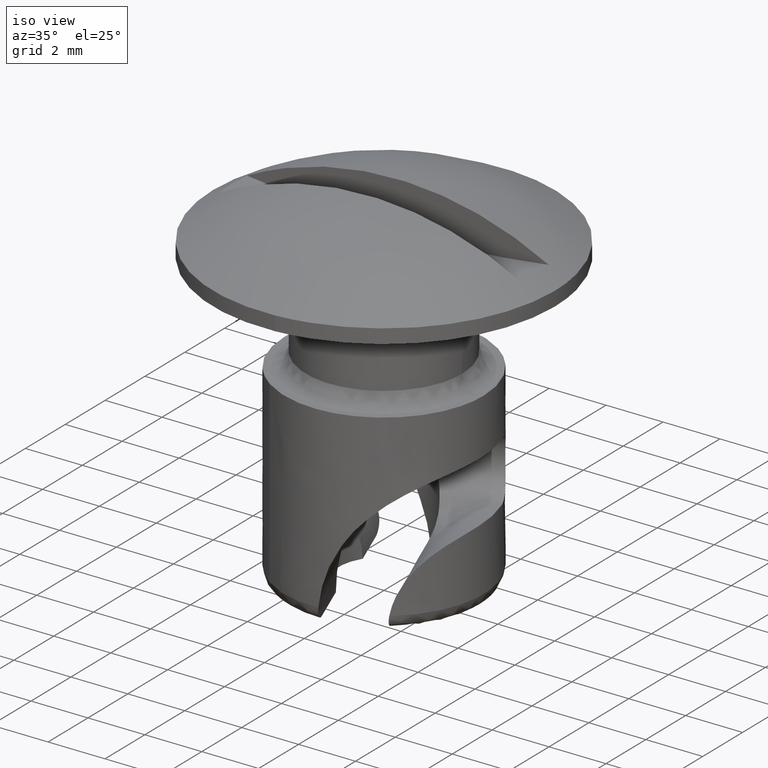
[diagram: clean part render]
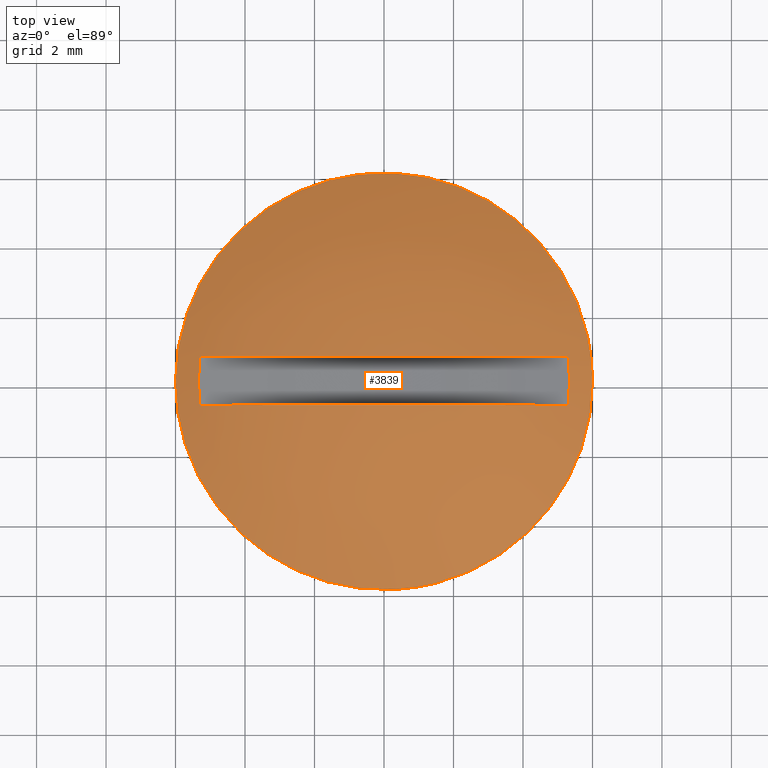
[diagram: tour spotlight — one face highlighted and labeled with its STEP entity id]
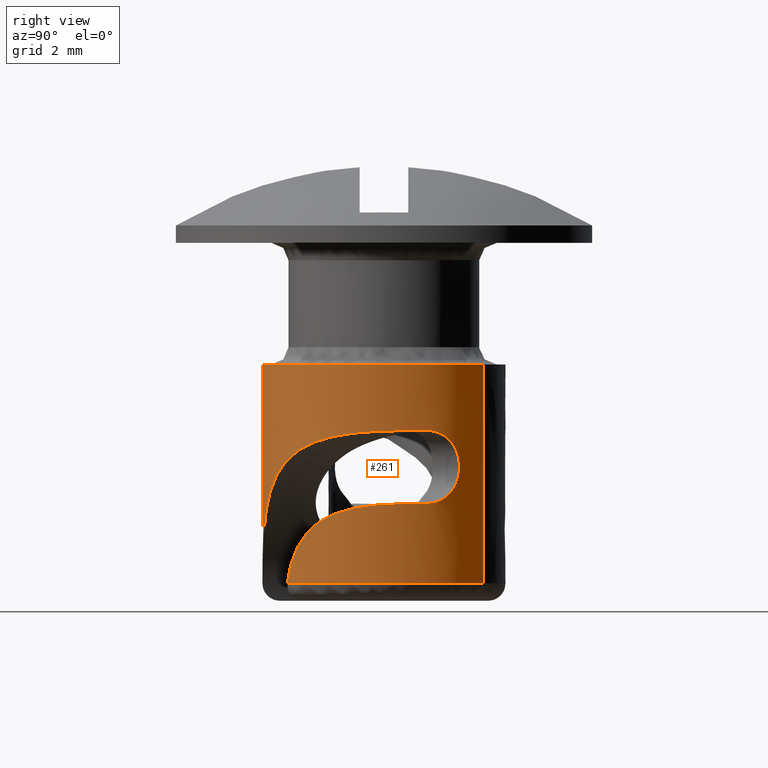
[diagram: tour spotlight — one face highlighted and labeled with its STEP entity id]
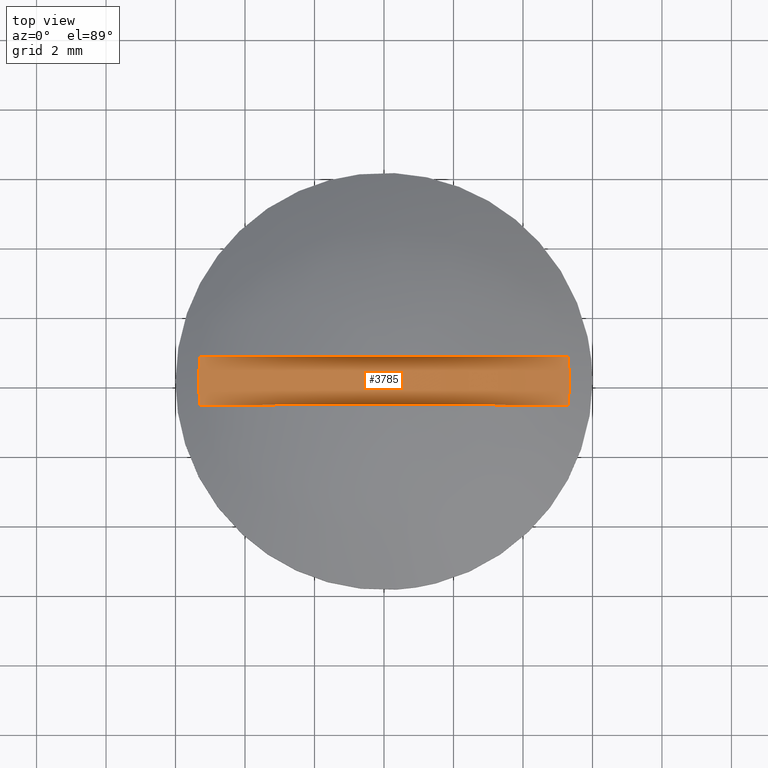
[diagram: tour spotlight — one face highlighted and labeled with its STEP entity id]
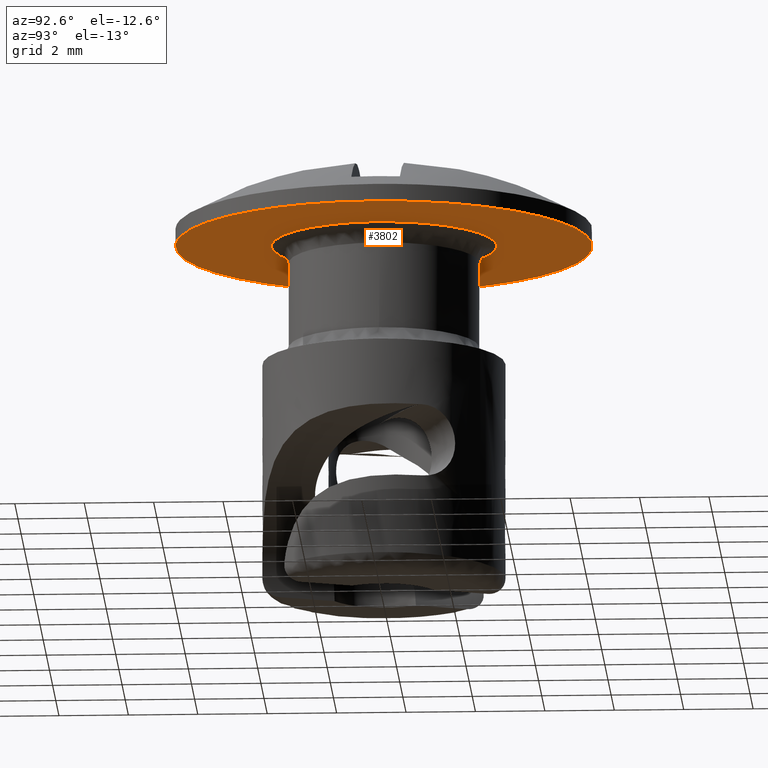
[diagram: tour spotlight — one face highlighted and labeled with its STEP entity id]
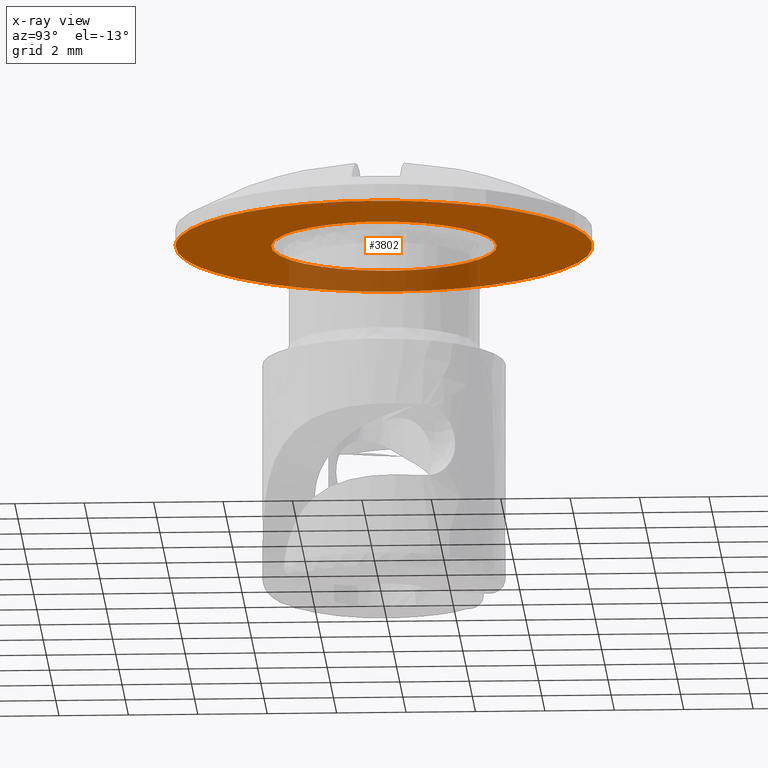
[diagram: x-ray of the same camera — body ghosted, this tour face saturated]
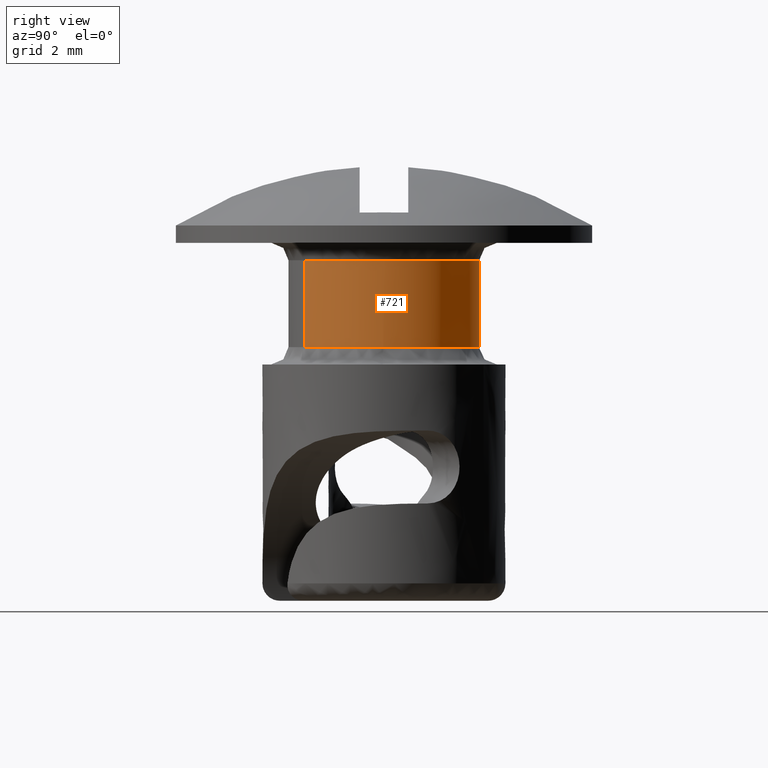
[diagram: tour spotlight — one face highlighted and labeled with its STEP entity id]
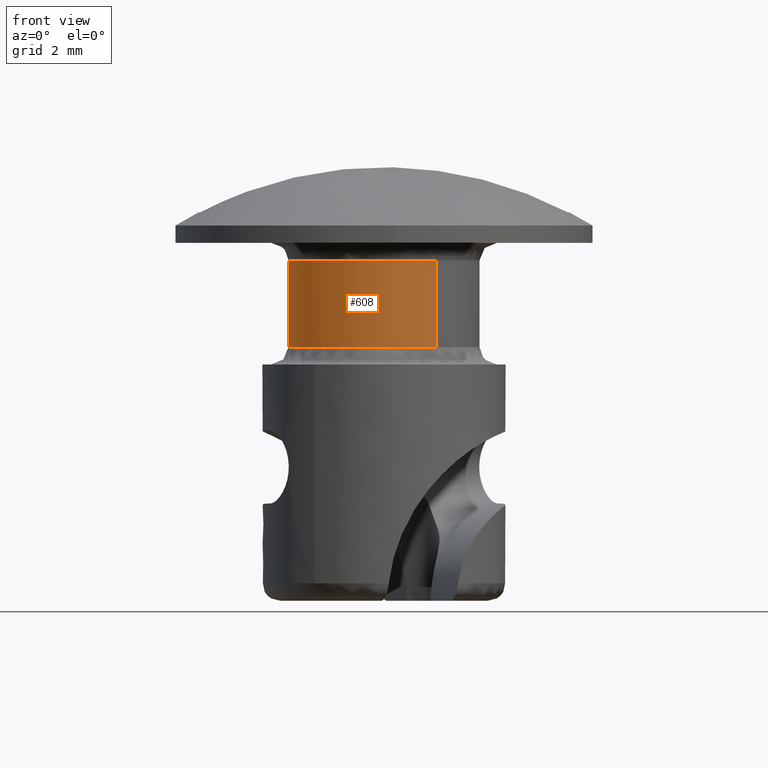
[diagram: tour spotlight — one face highlighted and labeled with its STEP entity id]
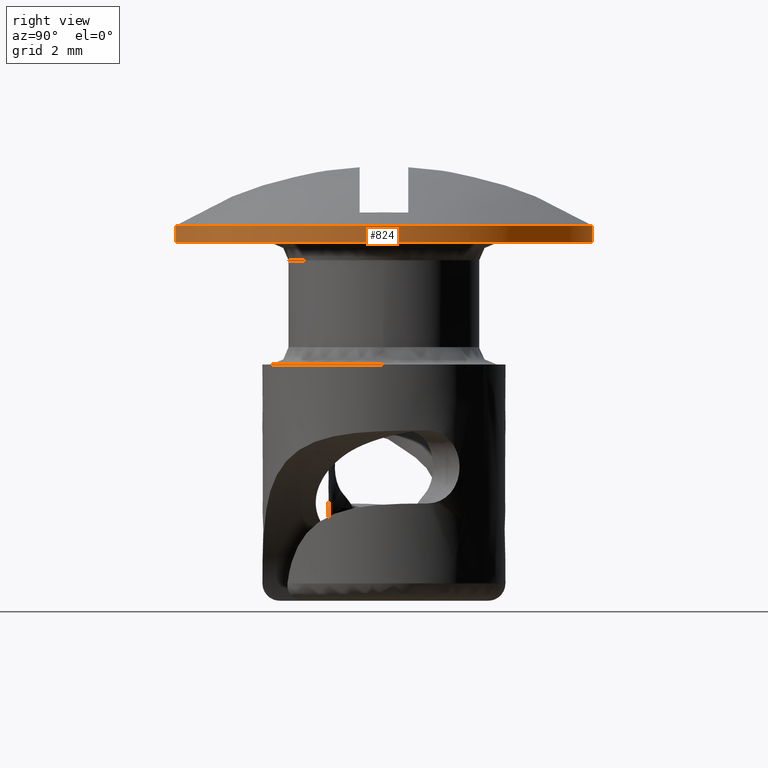
[diagram: tour spotlight — one face highlighted and labeled with its STEP entity id]
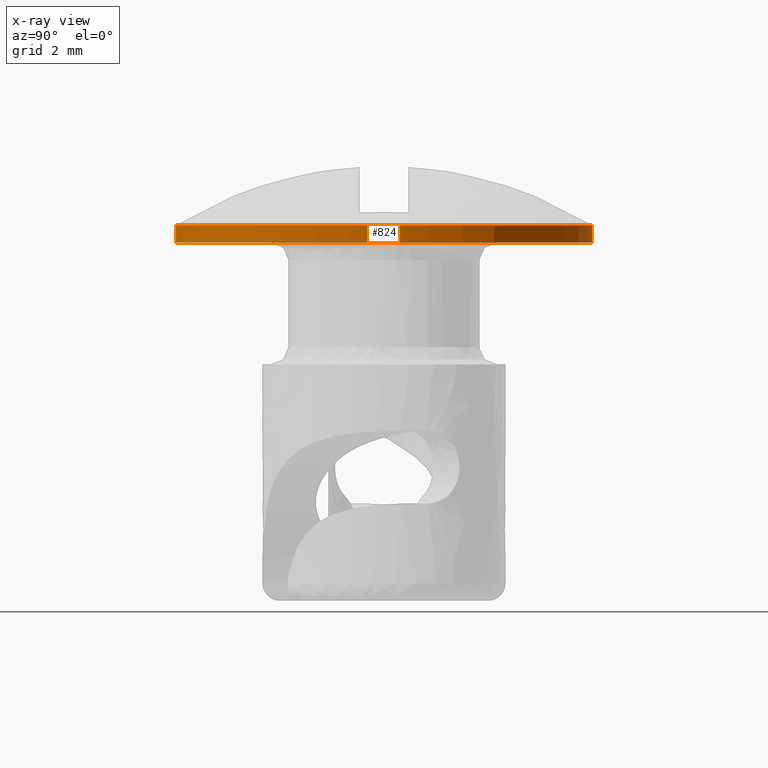
[diagram: x-ray of the same camera — body ghosted, this tour face saturated]
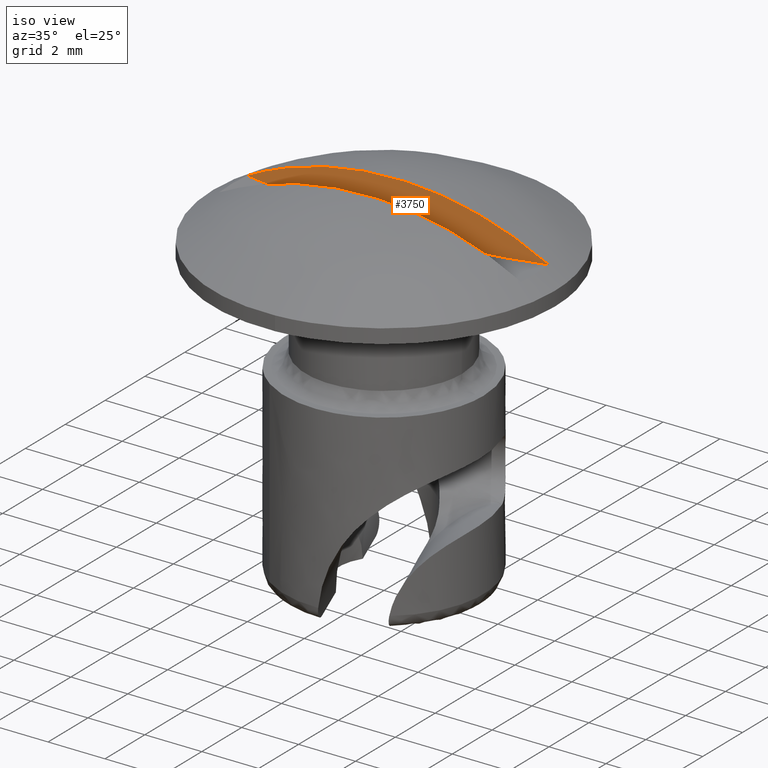
[diagram: tour spotlight — one face highlighted and labeled with its STEP entity id]
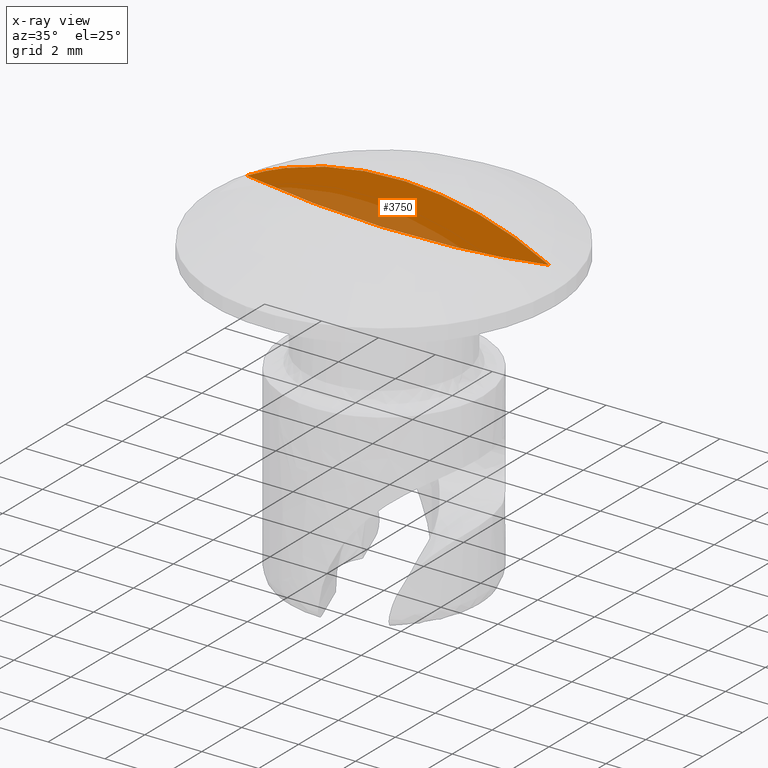
[diagram: x-ray of the same camera — body ghosted, this tour face saturated]
A machine part: a face-by-face anatomy tour. The part has 35 B-rep faces; the first image is the clean iso view, then the 8 largest visible faces are spotlighted one at a time (largest first), each with its STEP entity span.

Face 1 — top view, entity #3839. In plain terms, the highlighted face is a freeform B-spline surface patch.
Definition (entity closure, byte-faithful):
#763=CARTESIAN_POINT('',(-0.708201660671828,5.958057603599299,0.500000000000000));
#764=VERTEX_POINT('',#763);
#770=CARTESIAN_POINT('',(6.0,0.0,0.500000000000000));
#771=VERTEX_POINT('',#770);
#772=CARTESIAN_POINT('',(-0.708201660671828,5.958057603599301,0.500000000000000));
#773=CARTESIAN_POINT('',(-0.355342824469453,6.0,0.500000000000000));
#774=CARTESIAN_POINT('',(0.0,6.0,0.500000000000000));
#775=CARTESIAN_POINT('',(6.0,6.0,0.500000000000000));
#776=CARTESIAN_POINT('',(6.0,0.0,0.500000000000000));
#784=(BOUNDED_CURVE()B_SPLINE_CURVE(2,(#772,#773,#774,#775,#776),.UNSPECIFIED.,.F.,.U.)B_SPLINE_CURVE_WITH_KNOTS((3,2,3),(0.229562579808786,0.250000000000000,0.500000000000000),.UNSPECIFIED.)CURVE()GEOMETRIC_REPRESENTATION_ITEM()RATIONAL_B_SPLINE_CURVE((0.956026962526900,0.976056072863809,1.0,0.707106781186548,1.0))REPRESENTATION_ITEM(''));
#785=EDGE_CURVE('',#764,#771,#784,.T.);
#787=CARTESIAN_POINT('',(0.366289120546966,-5.988808919991055,0.500000000000000));
#788=VERTEX_POINT('',#787);
#789=CARTESIAN_POINT('',(6.0,0.0,0.500000000000000));
#790=CARTESIAN_POINT('',(6.000000000000001,-5.644238400040059,0.500000000000000));
#791=CARTESIAN_POINT('',(0.366289120546966,-5.988808919991055,0.500000000000000));
#799=(BOUNDED_CURVE()B_SPLINE_CURVE(2,(#789,#790,#791),.UNSPECIFIED.,.F.,.U.)B_SPLINE_CURVE_WITH_KNOTS((3,3),(0.500000000000000,0.739333023226263),.UNSPECIFIED.)CURVE()GEOMETRIC_REPRESENTATION_ITEM()RATIONAL_B_SPLINE_CURVE((1.0,0.719603921835620,0.976072172374189))REPRESENTATION_ITEM(''));
#800=EDGE_CURVE('',#771,#788,#799,.T.);
#874=CARTESIAN_POINT('',(-6.0,0.0,0.500000000000000));
#875=VERTEX_POINT('',#874);
#876=CARTESIAN_POINT('',(0.366289120546966,-5.988808919991055,0.500000000000000));
#877=CARTESIAN_POINT('',(0.183315518493018,-6.0,0.500000000000000));
#878=CARTESIAN_POINT('',(0.0,-6.0,0.500000000000000));
#879=CARTESIAN_POINT('',(-6.0,-6.0,0.500000000000000));
#880=CARTESIAN_POINT('',(-6.0,0.0,0.500000000000000));
#888=(BOUNDED_CURVE()B_SPLINE_CURVE(2,(#876,#877,#878,#879,#880),.UNSPECIFIED.,.F.,.U.)B_SPLINE_CURVE_WITH_KNOTS((3,2,3),(0.739333023226263,0.750000000000000,1.0),.UNSPECIFIED.)CURVE()GEOMETRIC_REPRESENTATION_ITEM()RATIONAL_B_SPLINE_CURVE((0.976072172374189,0.987502859350927,1.0,0.707106781186548,1.0))REPRESENTATION_ITEM(''));
#889=EDGE_CURVE('',#788,#875,#888,.T.);
#891=CARTESIAN_POINT('',(-6.0,0.0,0.500000000000000));
#892=CARTESIAN_POINT('',(-6.000000000000001,5.329050530961814,0.500000000000000));
#893=CARTESIAN_POINT('',(-0.708201660671828,5.958057603599301,0.500000000000000));
#901=(BOUNDED_CURVE()B_SPLINE_CURVE(2,(#891,#892,#893),.UNSPECIFIED.,.F.,.U.)B_SPLINE_CURVE_WITH_KNOTS((3,3),(0.0,0.229562579808786),.UNSPECIFIED.)CURVE()GEOMETRIC_REPRESENTATION_ITEM()RATIONAL_B_SPLINE_CURVE((1.0,0.731050708322738,0.956026962526900))REPRESENTATION_ITEM(''));
#902=EDGE_CURVE('',#875,#764,#901,.T.);
#3680=CARTESIAN_POINT('',(-5.303562853731459,-0.699997000000000,0.871922437406934));
#3681=VERTEX_POINT('',#3680);
#3682=CARTESIAN_POINT('',(5.303562853731459,-0.699997000000000,0.871922437406934));
#3683=VERTEX_POINT('',#3682);
#3697=CARTESIAN_POINT('',(5.303562853731459,-0.699997000000000,0.871922437406934));
#3698=CARTESIAN_POINT('',(4.336809E-015,-0.699997000000000,3.654050891943375));
#3699=CARTESIAN_POINT('',(-5.303562853731469,-0.699997000000000,0.871922437406952));
#3707=(BOUNDED_CURVE()B_SPLINE_CURVE(2,(#3697,#3698,#3699),.UNSPECIFIED.,.F.,.U.)CURVE()GEOMETRIC_REPRESENTATION_ITEM()QUASI_UNIFORM_CURVE()RATIONAL_B_SPLINE_CURVE((1.0,0.885551927244557,1.0))REPRESENTATION_ITEM(''));
#3708=EDGE_CURVE('',#3683,#3681,#3707,.T.);
#3718=CARTESIAN_POINT('',(5.303562853731459,0.699996999999907,0.871922437406934));
#3719=VERTEX_POINT('',#3718);
#3720=CARTESIAN_POINT('',(-5.303562853731459,0.699996999999907,0.871922437406934));
#3721=VERTEX_POINT('',#3720);
#3722=CARTESIAN_POINT('',(5.303562853731459,0.699996999999907,0.871922437406934));
#3723=CARTESIAN_POINT('',(4.336809E-015,0.699996999999910,3.654050891943375));
#3724=CARTESIAN_POINT('',(-5.303562853731469,0.699996999999910,0.871922437406952));
#3732=(BOUNDED_CURVE()B_SPLINE_CURVE(2,(#3722,#3723,#3724),.UNSPECIFIED.,.F.,.U.)CURVE()GEOMETRIC_REPRESENTATION_ITEM()QUASI_UNIFORM_CURVE()RATIONAL_B_SPLINE_CURVE((1.0,0.885551927244557,1.0))REPRESENTATION_ITEM(''));
#3733=EDGE_CURVE('',#3719,#3721,#3732,.T.);
#3766=CARTESIAN_POINT('',(-5.303562853731472,-0.699997000000000,0.871922437406934));
#3767=CARTESIAN_POINT('',(-5.327837280465762,-0.466664666666683,0.875343843874204));
#3768=CARTESIAN_POINT('',(-5.351858492111501,-4.743385E-014,0.878765250341469));
#3769=CARTESIAN_POINT('',(-5.327837280465761,0.466664666666589,0.875343843874209));
#3770=CARTESIAN_POINT('',(-5.303562853731474,0.699996999999907,0.871922437406939));
#3771=B_SPLINE_CURVE_WITH_KNOTS('',3,(#3766,#3767,#3768,#3769,#3770),.UNSPECIFIED.,.F.,.U.,(4,1,4),(0.0,0.500000000000000,1.0),.UNSPECIFIED.);
#3772=EDGE_CURVE('',#3681,#3721,#3771,.T.);
#3775=CARTESIAN_POINT('',(5.303562853731459,0.699996999999907,0.871922437406934));
#3776=CARTESIAN_POINT('',(5.327837280465756,0.466664666666589,0.875343843874210));
#3777=CARTESIAN_POINT('',(5.351858492111494,-4.667490E-014,0.878765250341474));
#3778=CARTESIAN_POINT('',(5.327837280465755,-0.466664666666682,0.875343843874207));
#3779=CARTESIAN_POINT('',(5.303562853731465,-0.699997000000000,0.871922437406936));
#3780=B_SPLINE_CURVE_WITH_KNOTS('',3,(#3775,#3776,#3777,#3778,#3779),.UNSPECIFIED.,.F.,.U.,(4,1,4),(0.0,0.500000000000000,1.0),.UNSPECIFIED.);
#3781=EDGE_CURVE('',#3719,#3683,#3780,.T.);
#3803=CARTESIAN_POINT('',(-5.969675992943822,-5.969543951738393,-1.520682928140488));
#3804=CARTESIAN_POINT('',(-3.249060713657500,-6.497977697607177,0.175019227125434));
#3805=CARTESIAN_POINT('',(3.249060519192921,-6.497977697607177,0.175019227125434));
#3806=CARTESIAN_POINT('',(5.969675693756793,-5.969544009850434,-1.520682741663528));
#3807=CARTESIAN_POINT('',(-6.498095981320763,-3.248976126087886,0.174937574745698));
#3808=CARTESIAN_POINT('',(-3.564590069219284,-3.564511225280327,2.199992000000094));
#3809=CARTESIAN_POINT('',(3.564589855869467,-3.564511225280327,2.199992000000094));
#3810=CARTESIAN_POINT('',(6.498095661249864,-3.248976160515495,0.174937795696663));
#3811=CARTESIAN_POINT('',(-6.498095981320763,3.248994055083641,0.174937574745698));
#3812=CARTESIAN_POINT('',(-3.564590069219284,3.564530895510007,2.199992000000094));
#3813=CARTESIAN_POINT('',(3.564589855869467,3.564530895510007,2.199992000000094));
#3814=CARTESIAN_POINT('',(6.498095661249864,3.248994089511440,0.174937795696663));
#3815=CARTESIAN_POINT('',(-5.969670635173111,5.969571536104839,-1.520700120423281));
#3816=CARTESIAN_POINT('',(-3.249057539501856,6.498007207533205,0.174998856346475));
#3817=CARTESIAN_POINT('',(3.249057345037466,6.498007207533205,0.174998856346475));
#3818=CARTESIAN_POINT('',(5.969670335986301,5.969571594217098,-1.520699933946656));
#3826=(BOUNDED_SURFACE()B_SPLINE_SURFACE(2,2,((#3803,#3807,#3811,#3815),(#3804,#3808,#3812,#3816),(#3805,#3809,#3813,#3817),(#3806,#3810,#3814,#3818)),.UNSPECIFIED.,.F.,.F.,.U.)B_SPLINE_SURFACE_WITH_KNOTS((3,1,3),(3,1,3),(1.175170707547665,7.855777368122123,14.536383628845220),(1.175318473583460,7.855777368122122,14.536273127788309),.UNSPECIFIED.)GEOMETRIC_REPRESENTATION_ITEM()RATIONAL_B_SPLINE_SURFACE(((1.194232341397638,1.097118318801677,1.097118318801677,1.194233413219427),(1.097114022595961,1.0,1.0,1.097115094417751),(1.097114022595961,1.0,1.0,1.097115094417751),(1.194232329772080,1.097118307176119,1.097118307176119,1.194233401593869)))REPRESENTATION_ITEM('')SURFACE());
#3827=ORIENTED_EDGE('',*,*,#889,.F.);
#3828=ORIENTED_EDGE('',*,*,#800,.F.);
#3829=ORIENTED_EDGE('',*,*,#785,.F.);
#3830=ORIENTED_EDGE('',*,*,#902,.F.);
#3831=EDGE_LOOP('',(#3827,#3828,#3829,#3830));
#3832=FACE_OUTER_BOUND('',#3831,.T.);
#3833=ORIENTED_EDGE('',*,*,#3733,.F.);
#3834=ORIENTED_EDGE('',*,*,#3781,.T.);
#3835=ORIENTED_EDGE('',*,*,#3708,.T.);
#3836=ORIENTED_EDGE('',*,*,#3772,.T.);
#3837=EDGE_LOOP('',(#3833,#3834,#3835,#3836));
#3838=FACE_BOUND('',#3837,.T.);
#3839=ADVANCED_FACE('',(#3832,#3838),#3826,.T.);

Face 2 — right view, entity #261. In plain terms, the highlighted face is a freeform B-spline surface patch.
Definition (entity closure, byte-faithful):
#44=CARTESIAN_POINT('',(-2.008126164409476,-2.866605886377490,-9.957500000000000));
#45=CARTESIAN_POINT('',(0.858479721968014,-4.874732050786967,-9.957500000000000));
#46=CARTESIAN_POINT('',(2.866605886377490,-2.008126164409476,-9.957500000000000));
#47=CARTESIAN_POINT('',(4.874732050786967,0.858479721968014,-9.957500000000000));
#48=CARTESIAN_POINT('',(2.008126164409476,2.866605886377490,-9.957500000000000));
#49=CARTESIAN_POINT('',(-2.008126164409476,-2.866605886377490,-3.338562500000061));
#50=CARTESIAN_POINT('',(0.858479721968014,-4.874732050786967,-3.338562500000061));
#51=CARTESIAN_POINT('',(2.866605886377490,-2.008126164409476,-3.338562500000061));
#52=CARTESIAN_POINT('',(4.874732050786967,0.858479721968014,-3.338562500000061));
#53=CARTESIAN_POINT('',(2.008126164409476,2.866605886377490,-3.338562500000061));
#61=(BOUNDED_SURFACE()B_SPLINE_SURFACE(2,1,((#44,#49),(#45,#50),(#46,#51),(#47,#52),(#48,#53)),.UNSPECIFIED.,.F.,.F.,.U.)B_SPLINE_SURFACE_WITH_KNOTS((3,2,3),(2,2),(0.0,5.798989873223329,11.597979746446660),(0.0,6.618937499999940),.UNSPECIFIED.)GEOMETRIC_REPRESENTATION_ITEM()RATIONAL_B_SPLINE_SURFACE(((1.0,1.0),(0.707106781186548,0.707106781186548),(1.0,1.0),(0.707106781186548,0.707106781186548),(1.0,1.0)))REPRESENTATION_ITEM('')SURFACE());
#62=CARTESIAN_POINT('',(-2.008126173455086,-2.866605880040825,-3.500000000000060));
#63=VERTEX_POINT('',#62);
#64=CARTESIAN_POINT('',(3.500000000000000,0.0,-3.500000000000060));
#65=VERTEX_POINT('',#64);
#66=CARTESIAN_POINT('',(-2.008126173455085,-2.866605880040824,-3.500000000000060));
#67=CARTESIAN_POINT('',(-1.103954254146913,-3.500000000000000,-3.500000000000060));
#68=CARTESIAN_POINT('',(0.0,-3.500000000000000,-3.500000000000060));
#69=CARTESIAN_POINT('',(3.500000000000000,-3.500000000000000,-3.500000000000060));
#70=CARTESIAN_POINT('',(3.500000000000000,0.0,-3.500000000000060));
#78=(BOUNDED_CURVE()B_SPLINE_CURVE(2,(#66,#67,#68,#69,#70),.UNSPECIFIED.,.F.,.U.)B_SPLINE_CURVE_WITH_KNOTS((3,2,3),(0.651369759695088,0.750000000000000,1.0),.UNSPECIFIED.)CURVE()GEOMETRIC_REPRESENTATION_ITEM()RATIONAL_B_SPLINE_CURVE((0.860070749521632,0.884447485779000,1.0,0.707106781186547,1.0))REPRESENTATION_ITEM(''));
#79=EDGE_CURVE('',#63,#65,#78,.T.);
#80=ORIENTED_EDGE('',*,*,#79,.F.);
#81=CARTESIAN_POINT('',(-2.008126187107563,-2.866605870476937,-9.799999999999999));
#82=VERTEX_POINT('',#81);
#83=CARTESIAN_POINT('',(-2.008126187107563,-2.866605870476937,-9.799999999999999));
#84=CARTESIAN_POINT('',(-2.008126173455086,-2.866605880040825,-3.500000000000060));
#85=QUASI_UNIFORM_CURVE('',1,(#83,#84),.UNSPECIFIED.,.F.,.U.);
#86=EDGE_CURVE('',#82,#63,#85,.T.);
#87=ORIENTED_EDGE('',*,*,#86,.F.);
#88=CARTESIAN_POINT('',(0.137757022448153,-3.497287949649875,-9.799999999999999));
#89=VERTEX_POINT('',#88);
#90=CARTESIAN_POINT('',(-2.008126187107563,-2.866605870476937,-9.799999999999999));
#91=CARTESIAN_POINT('',(-1.041516516738349,-3.543739146619940,-9.799999999999999));
#92=CARTESIAN_POINT('',(0.137757022448151,-3.497287949649874,-9.799999999999999));
#100=(BOUNDED_CURVE()B_SPLINE_CURVE(2,(#90,#91,#92),.UNSPECIFIED.,.F.,.U.)B_SPLINE_CURVE_WITH_KNOTS((3,3),(0.742816691669973,1.0),.UNSPECIFIED.)CURVE()GEOMETRIC_REPRESENTATION_ITEM()RATIONAL_B_SPLINE_CURVE((0.903601217125584,0.900749427261947,1.0))REPRESENTATION_ITEM(''));
#101=EDGE_CURVE('',#82,#89,#100,.T.);
#102=ORIENTED_EDGE('',*,*,#101,.T.);
#103=CARTESIAN_POINT('',(3.270921944318185,1.243027475562352,-5.400044604692890));
#104=VERTEX_POINT('',#103);
#105=CARTESIAN_POINT('',(3.270921944318185,1.243027475562352,-5.400044604692890));
#106=CARTESIAN_POINT('',(3.337428524366804,1.067785125365376,-5.400081035622704));
#107=CARTESIAN_POINT('',(3.389077508768006,0.889546251571947,-5.400817230837527));
#108=CARTESIAN_POINT('',(3.463836248487102,0.527322468759356,-5.404459444765637));
#109=CARTESIAN_POINT('',(3.486944652731964,0.343337197643135,-5.407358008335470));
#110=CARTESIAN_POINT('',(3.497343891202687,0.109651506955560,-5.413887701239980));
#111=CARTESIAN_POINT('',(3.498487321264518,0.062751030427808,-5.415344049122055));
#112=CARTESIAN_POINT('',(3.498896758835796,-0.030558936478385,-5.418581372367856));
#113=CARTESIAN_POINT('',(3.498168693204514,-0.077075848872448,-5.420365162795740));
#114=CARTESIAN_POINT('',(3.493230484071851,-0.216212885647622,-5.426287710037986));
#115=CARTESIAN_POINT('',(3.486270303458540,-0.308420046391675,-5.430994888138319));
#116=CARTESIAN_POINT('',(3.454588059182040,-0.583365650327476,-5.448093109595621));
#117=CARTESIAN_POINT('',(3.419124156154236,-0.764440744708545,-5.463399531518586));
#118=CARTESIAN_POINT('',(3.356613484029639,-0.987748349892645,-5.490521972158057));
#119=CARTESIAN_POINT('',(3.343159768619089,-1.032369789805334,-5.496367366326092));
#120=CARTESIAN_POINT('',(3.314607546158963,-1.120666867912481,-5.508874455932501));
#121=CARTESIAN_POINT('',(3.269355497882446,-1.251612368960199,-5.528840667469681));
#122=CARTESIAN_POINT('',(3.217066048576097,-1.378103675207626,-5.552705097294906));
#123=CARTESIAN_POINT('',(3.103592574227444,-1.625186658399358,-5.606450887842163));
#124=CARTESIAN_POINT('',(3.016112354655570,-1.782066931734708,-5.650261683792408));
#125=CARTESIAN_POINT('',(2.868438751313074,-2.005304417032259,-5.731830710992950));
#126=CARTESIAN_POINT('',(2.816266059322724,-2.077897415131813,-5.761805116992512));
#127=CARTESIAN_POINT('',(2.708973710333107,-2.216025305863624,-5.826346215079234));
#128=CARTESIAN_POINT('',(2.653629544564001,-2.281939777183316,-5.861028155068783));
#129=CARTESIAN_POINT('',(2.483284798684816,-2.470695984313708,-5.972736617806401));
#130=CARTESIAN_POINT('',(2.363982542788617,-2.584571174964870,-6.057409132917961));
#131=CARTESIAN_POINT('',(2.209966372633149,-2.713079800879704,-6.177612147125156));
#132=CARTESIAN_POINT('',(2.178869134984441,-2.738122721692637,-6.202413966190091));
#133=CARTESIAN_POINT('',(2.116787784382817,-2.786429290439684,-6.253046256317140));
#134=CARTESIAN_POINT('',(2.023659820090877,-2.856373356785835,-6.330669665347478));
#135=CARTESIAN_POINT('',(1.930758473270878,-2.919160838695215,-6.413316105045489));
#136=CARTESIAN_POINT('',(1.745854746306177,-3.036091316036991,-6.585339498652041));
#137=CARTESIAN_POINT('',(1.623726894034127,-3.102572148014052,-6.709044526735073));
#138=CARTESIAN_POINT('',(1.385070576196898,-3.216327764734752,-6.974643649284850));
#139=CARTESIAN_POINT('',(1.271098997556564,-3.262433903975237,-7.113672311535568));
#140=CARTESIAN_POINT('',(1.055195950018211,-3.338621666939527,-7.403831943829860));
#141=CARTESIAN_POINT('',(0.953256632940966,-3.368675382879683,-7.554963920986750));
#142=CARTESIAN_POINT('',(0.810563228651727,-3.404831464730671,-7.790846652546750));
#143=CARTESIAN_POINT('',(0.764704169255701,-3.415388297550936,-7.871008787853918));
#144=CARTESIAN_POINT('',(0.676639781496962,-3.433960333682570,-8.034467267459016));
#145=CARTESIAN_POINT('',(0.634502596955019,-3.441956693920404,-8.117672769338926));
#146=CARTESIAN_POINT('',(0.515276580374612,-3.462572881493416,-8.369111536494753));
#147=CARTESIAN_POINT('',(0.444836072192219,-3.471963906991542,-8.540096508131645));
#148=CARTESIAN_POINT('',(0.322863523102436,-3.485484875808227,-8.888919231465820));
#149=CARTESIAN_POINT('',(0.271330521898766,-3.489610233367626,-9.066756850704293));
#150=CARTESIAN_POINT('',(0.209273003390313,-3.493736914069842,-9.338940440315827));
#151=CARTESIAN_POINT('',(0.191099198159951,-3.494763710180998,-9.430801697463467));
#152=CARTESIAN_POINT('',(0.160292957893944,-3.496337413987351,-9.615014204358049));
#153=CARTESIAN_POINT('',(0.147640504235540,-3.496886741682631,-9.707377773324200));
#154=CARTESIAN_POINT('',(0.137757022448153,-3.497287949649875,-9.799999999999999));
#155=B_SPLINE_CURVE_WITH_KNOTS('',3,(#105,#106,#107,#108,#109,#110,#111,#112,#113,#114,#115,#116,#117,#118,#119,#120,#121,#122,#123,#124,#125,#126,#127,#128,#129,#130,#131,#132,#133,#134,#135,#136,#137,#138,#139,#140,#141,#142,#143,#144,#145,#146,#147,#148,#149,#150,#151,#152,#153,#154),.UNSPECIFIED.,.F.,.U.,(4,2,2,2,2,2,2,2,1,2,2,2,2,2,2,1,2,2,2,2,2,2,2,2,2,4),(0.0,0.062500000000000,0.125000000000000,0.140625000000000,0.156249999999999,0.187499999999999,0.249999999999999,0.265624999999999,0.281249999999999,0.312499999999999,0.374999999999999,0.406249999999999,0.437499999999999,0.499999999999999,0.515624999999999,0.531249999999999,0.562499999999999,0.624999999999999,0.687499999999999,0.749999999999999,0.781249999999999,0.812499999999999,0.874999999999999,0.937500000000000,0.968750000000000,1.0),.UNSPECIFIED.);
#156=EDGE_CURVE('',#104,#89,#155,.T.);
#157=ORIENTED_EDGE('',*,*,#156,.F.);
#158=CARTESIAN_POINT('',(3.267531389806065,1.254288091569578,-7.500000000000000));
#159=VERTEX_POINT('',#158);
#160=CARTESIAN_POINT('',(3.267531389806065,1.254288091569578,-7.500000000000000));
#161=CARTESIAN_POINT('',(3.166599527576531,1.517224517645252,-7.499999999998990));
#162=CARTESIAN_POINT('',(3.036043324559889,1.752934299516111,-7.387636147552637));
#163=CARTESIAN_POINT('',(2.925819313257816,1.920828296898910,-7.190189754964989));
#164=CARTESIAN_POINT('',(2.815628972075507,2.088671007715990,-6.992803676310819));
#165=CARTESIAN_POINT('',(2.739675824632186,2.178113717872262,-6.725398091433771));
#166=CARTESIAN_POINT('',(2.740751613318740,2.176759195247665,-6.443846393058621));
#167=CARTESIAN_POINT('',(2.741826775032157,2.175405462043248,-6.162458783926705));
#168=CARTESIAN_POINT('',(2.819653961721287,2.083433286935136,-5.896444223789207));
#169=CARTESIAN_POINT('',(2.930553355932599,1.913597927473874,-5.701407688290080));
#170=CARTESIAN_POINT('',(2.985408480011838,1.829590798467037,-5.604935084171038));
#171=CARTESIAN_POINT('',(3.046246662693587,1.728312242686165,-5.528401212579128));
#172=CARTESIAN_POINT('',(3.105796175257652,1.613700752232258,-5.476523399242928));
#173=CARTESIAN_POINT('',(3.165698818865186,1.498409610955450,-5.424337948353245));
#174=CARTESIAN_POINT('',(3.221187175496049,1.373900324259701,-5.398480796300204));
#175=CARTESIAN_POINT('',(3.270921944318185,1.243027475562352,-5.400044604692890));
#176=B_SPLINE_CURVE_WITH_KNOTS('',3,(#160,#161,#162,#163,#164,#165,#166,#167,#168,#169,#170,#171,#172,#173,#174,#175),.UNSPECIFIED.,.F.,.U.,(4,3,3,3,3,4),(0.0,0.844929135925097,1.689600171415795,2.533778929886696,2.951342351854023,3.371381941980662),.UNSPECIFIED.);
#177=EDGE_CURVE('',#159,#104,#176,.T.);
#178=ORIENTED_EDGE('',*,*,#177,.F.);
#179=CARTESIAN_POINT('',(2.130075441178695,-2.777188977165110,-9.799999999999999));
#180=VERTEX_POINT('',#179);
#181=CARTESIAN_POINT('',(3.267531389806065,1.254288091569578,-7.500000000000000));
#182=CARTESIAN_POINT('',(3.351236201231299,1.036229656143436,-7.500000000000044));
#183=CARTESIAN_POINT('',(3.411928696002229,0.813524103630146,-7.501800996670410));
#184=CARTESIAN_POINT('',(3.469827848615740,0.472825998035585,-7.509600199138060));
#185=CARTESIAN_POINT('',(3.483562531513644,0.358145937308108,-7.513102425939852));
#186=CARTESIAN_POINT('',(3.495619258811995,0.184431839080708,-7.520534950377434));
#187=CARTESIAN_POINT('',(3.498212180357703,0.126067960738633,-7.523390375839235));
#188=CARTESIAN_POINT('',(3.500469369138221,0.009786994067344,-7.529966316466439));
#189=CARTESIAN_POINT('',(3.500144511385645,-0.048109455840942,-7.533682853950110));
#190=CARTESIAN_POINT('',(3.491431374993662,-0.336340421150417,-7.554835481180631));
#191=CARTESIAN_POINT('',(3.461918738339056,-0.562977309875933,-7.579685337474297));
#192=CARTESIAN_POINT('',(3.398109027051475,-0.840294049969957,-7.630150688370773));
#193=CARTESIAN_POINT('',(3.383992784310701,-0.895454771716498,-7.641234085952900));
#194=CARTESIAN_POINT('',(3.353052753250729,-1.005128671551286,-7.665714803996297));
#195=CARTESIAN_POINT('',(3.336194478454455,-1.059709490379539,-7.679141610569226));
#196=CARTESIAN_POINT('',(3.282408131559164,-1.220044288604357,-7.722764943899255));
#197=CARTESIAN_POINT('',(3.242068892079098,-1.323176334171434,-7.756451718762180));
#198=CARTESIAN_POINT('',(3.153749195252483,-1.521733329378920,-7.834986374075235));
#199=CARTESIAN_POINT('',(3.105763618038666,-1.617158614404564,-7.879827729397090));
#200=CARTESIAN_POINT('',(3.029071382458803,-1.754271634835380,-7.957209940913512));
#201=CARTESIAN_POINT('',(3.002696795596453,-1.798990073473793,-7.984733671681084));
#202=CARTESIAN_POINT('',(2.949511085799129,-1.884923787714104,-8.042440264602139));
#203=CARTESIAN_POINT('',(2.922593267598990,-1.926337623400674,-8.072727371432229));
#204=CARTESIAN_POINT('',(2.841274894414501,-2.046086303884922,-8.168031174000660));
#205=CARTESIAN_POINT('',(2.786308989744113,-2.119934950668822,-8.237482804827646));
#206=CARTESIAN_POINT('',(2.704329386886667,-2.222276549525328,-8.351197747841971));
#207=CARTESIAN_POINT('',(2.677080857038320,-2.254983552241504,-8.390693929119360));
#208=CARTESIAN_POINT('',(2.623012407187708,-2.317653694523857,-8.473006711592110));
#209=CARTESIAN_POINT('',(2.596184807477795,-2.347614942412542,-8.515860002349939));
#210=CARTESIAN_POINT('',(2.518069499382953,-2.432120861706074,-8.647317138427413));
#211=CARTESIAN_POINT('',(2.468685109934227,-2.481862689659987,-8.739491498513999));
#212=CARTESIAN_POINT('',(2.376845319873072,-2.569952316237547,-8.932795620225662));
#213=CARTESIAN_POINT('',(2.334357523734910,-2.608320339728411,-9.033992450119744));
#214=CARTESIAN_POINT('',(2.257984747262039,-2.674708381186761,-9.245278260521744));
#215=CARTESIAN_POINT('',(2.224880716377851,-2.702069470426255,-9.353192757073963));
#216=CARTESIAN_POINT('',(2.169320343134329,-2.746875110736415,-9.573347943216529));
#217=CARTESIAN_POINT('',(2.146860492499996,-2.764315015078841,-9.685588694464434));
#218=CARTESIAN_POINT('',(2.130075441178695,-2.777188977165110,-9.799999999999999));
#219=B_SPLINE_CURVE_WITH_KNOTS('',3,(#181,#182,#183,#184,#185,#186,#187,#188,#189,#190,#191,#192,#193,#194,#195,#196,#197,#198,#199,#200,#201,#202,#203,#204,#205,#206,#207,#208,#209,#210,#211,#212,#213,#214,#215,#216,#217,#218),.UNSPECIFIED.,.F.,.U.,(4,2,2,2,2,2,2,2,2,2,2,2,2,2,2,2,2,2,4),(0.0,0.124999999999999,0.187499999999999,0.218749999999999,0.249999999999999,0.374999999999999,0.406249999999998,0.437499999999998,0.499999999999999,0.562499999999999,0.593749999999999,0.624999999999998,0.687499999999998,0.718749999999998,0.749999999999998,0.812499999999998,0.874999999999999,0.937499999999999,1.0),.UNSPECIFIED.);
#220=EDGE_CURVE('',#159,#180,#219,.T.);
#221=ORIENTED_EDGE('',*,*,#220,.T.);
#222=CARTESIAN_POINT('',(2.008126187107563,2.866605870476937,-9.800000000000001));
#223=VERTEX_POINT('',#222);
#224=CARTESIAN_POINT('',(2.130075441178693,-2.777188977165111,-9.799999999999999));
#225=CARTESIAN_POINT('',(4.162072481353427,-1.218668103212116,-9.800000000000001));
#226=CARTESIAN_POINT('',(3.291595106735739,1.189706540838262,-9.799999999999999));
#227=CARTESIAN_POINT('',(2.915156806922762,2.231209149354866,-9.799999999999999));
#228=CARTESIAN_POINT('',(2.008126187107563,2.866605870476937,-9.800000000000001));
#236=(BOUNDED_CURVE()B_SPLINE_CURVE(2,(#224,#225,#226,#227,#228),.UNSPECIFIED.,.F.,.U.)B_SPLINE_CURVE_WITH_KNOTS((3,2,3),(0.0,0.500000000000000,0.742816691669972),.UNSPECIFIED.)CURVE()GEOMETRIC_REPRESENTATION_ITEM()RATIONAL_B_SPLINE_CURVE((1.0,0.807043129310147,1.0,0.906293702048198,0.903601217125585))REPRESENTATION_ITEM(''));
#237=EDGE_CURVE('',#180,#223,#236,.T.);
#238=ORIENTED_EDGE('',*,*,#237,.T.);
#239=CARTESIAN_POINT('',(2.008126173455086,2.866605880040824,-3.500000000000060));
#240=VERTEX_POINT('',#239);
#241=CARTESIAN_POINT('',(2.008126187107563,2.866605870476937,-9.800000000000001));
#242=CARTESIAN_POINT('',(2.008126173455086,2.866605880040824,-3.500000000000060));
#243=QUASI_UNIFORM_CURVE('',1,(#241,#242),.UNSPECIFIED.,.F.,.U.);
#244=EDGE_CURVE('',#223,#240,#243,.T.);
#245=ORIENTED_EDGE('',*,*,#244,.T.);
#246=CARTESIAN_POINT('',(3.500000000000000,0.0,-3.500000000000060));
#247=CARTESIAN_POINT('',(3.500000000000000,1.821512475483907,-3.500000000000060));
#248=CARTESIAN_POINT('',(2.008126173455085,2.866605880040824,-3.500000000000060));
#256=(BOUNDED_CURVE()B_SPLINE_CURVE(2,(#246,#247,#248),.UNSPECIFIED.,.F.,.U.)B_SPLINE_CURVE_WITH_KNOTS((3,3),(0.0,0.151369759695088),.UNSPECIFIED.)CURVE()GEOMETRIC_REPRESENTATION_ITEM()RATIONAL_B_SPLINE_CURVE((1.0,0.822659295407547,0.860070749521632))REPRESENTATION_ITEM(''));
#257=EDGE_CURVE('',#65,#240,#256,.T.);
#258=ORIENTED_EDGE('',*,*,#257,.F.);
#259=EDGE_LOOP('',(#80,#87,#102,#157,#178,#221,#238,#245,#258));
#260=FACE_OUTER_BOUND('',#259,.T.);
#261=ADVANCED_FACE('',(#260),#61,.T.);

Face 3 — top view, entity #3785. In plain terms, the highlighted face is a freeform B-spline surface patch.
Definition (entity closure, byte-faithful):
#3680=CARTESIAN_POINT('',(-5.303562853731459,-0.699997000000000,0.871922437406934));
#3681=VERTEX_POINT('',#3680);
#3682=CARTESIAN_POINT('',(5.303562853731459,-0.699997000000000,0.871922437406934));
#3683=VERTEX_POINT('',#3682);
#3684=CARTESIAN_POINT('',(-5.303562853731460,-0.699997000000008,0.871922437406934));
#3685=CARTESIAN_POINT('',(-7.806256E-015,-0.699997000000008,0.124401416789009));
#3686=CARTESIAN_POINT('',(5.303562853731451,-0.699997000000008,0.871922437406934));
#3694=(BOUNDED_CURVE()B_SPLINE_CURVE(2,(#3684,#3685,#3686),.UNSPECIFIED.,.F.,.U.)CURVE()GEOMETRIC_REPRESENTATION_ITEM()QUASI_UNIFORM_CURVE()RATIONAL_B_SPLINE_CURVE((1.0,0.990212567436660,1.0))REPRESENTATION_ITEM(''));
#3695=EDGE_CURVE('',#3681,#3683,#3694,.T.);
#3718=CARTESIAN_POINT('',(5.303562853731459,0.699996999999907,0.871922437406934));
#3719=VERTEX_POINT('',#3718);
#3720=CARTESIAN_POINT('',(-5.303562853731459,0.699996999999907,0.871922437406934));
#3721=VERTEX_POINT('',#3720);
#3735=CARTESIAN_POINT('',(-5.303562853731460,0.699996999999897,0.871922437406934));
#3736=CARTESIAN_POINT('',(-7.806256E-015,0.699996999999897,0.124401416789009));
#3737=CARTESIAN_POINT('',(5.303562853731459,0.699996999999907,0.871922437406934));
#3745=(BOUNDED_CURVE()B_SPLINE_CURVE(2,(#3735,#3736,#3737),.UNSPECIFIED.,.F.,.U.)CURVE()GEOMETRIC_REPRESENTATION_ITEM()QUASI_UNIFORM_CURVE()RATIONAL_B_SPLINE_CURVE((1.0,0.990212567436660,1.0))REPRESENTATION_ITEM(''));
#3746=EDGE_CURVE('',#3721,#3719,#3745,.T.);
#3751=CARTESIAN_POINT('',(5.866867494167028,0.734996849999905,0.955628040864970));
#3752=CARTESIAN_POINT('',(5.866867494167028,-0.735871846250006,0.955628040864970));
#3753=CARTESIAN_POINT('',(-0.000333142032202,0.734996849999905,0.038790525731146));
#3754=CARTESIAN_POINT('',(-0.000333142032202,-0.735871846250006,0.038790525731146));
#3755=CARTESIAN_POINT('',(-5.867517894485312,0.734996849999905,0.955729681376240));
#3756=CARTESIAN_POINT('',(-5.867517894485312,-0.735871846250006,0.955729681376240));
#3764=(BOUNDED_SURFACE()B_SPLINE_SURFACE(1,2,((#3751,#3753,#3755),(#3752,#3754,#3756)),.UNSPECIFIED.,.F.,.F.,.U.)B_SPLINE_SURFACE_WITH_KNOTS((2,2),(3,3),(0.0,1.0),(1.097222078073025,12.902594101202491),.UNSPECIFIED.)GEOMETRIC_REPRESENTATION_ITEM()RATIONAL_B_SPLINE_SURFACE(((0.997451781298771,0.984854208158674,0.996163582421710),(0.997451781298771,0.984854208158674,0.996163582421710)))REPRESENTATION_ITEM('')SURFACE());
#3765=ORIENTED_EDGE('',*,*,#3746,.F.);
#3766=CARTESIAN_POINT('',(-5.303562853731472,-0.699997000000000,0.871922437406934));
#3767=CARTESIAN_POINT('',(-5.327837280465762,-0.466664666666683,0.875343843874204));
#3768=CARTESIAN_POINT('',(-5.351858492111501,-4.743385E-014,0.878765250341469));
#3769=CARTESIAN_POINT('',(-5.327837280465761,0.466664666666589,0.875343843874209));
#3770=CARTESIAN_POINT('',(-5.303562853731474,0.699996999999907,0.871922437406939));
#3771=B_SPLINE_CURVE_WITH_KNOTS('',3,(#3766,#3767,#3768,#3769,#3770),.UNSPECIFIED.,.F.,.U.,(4,1,4),(0.0,0.500000000000000,1.0),.UNSPECIFIED.);
#3772=EDGE_CURVE('',#3681,#3721,#3771,.T.);
#3773=ORIENTED_EDGE('',*,*,#3772,.F.);
#3774=ORIENTED_EDGE('',*,*,#3695,.T.);
#3775=CARTESIAN_POINT('',(5.303562853731459,0.699996999999907,0.871922437406934));
#3776=CARTESIAN_POINT('',(5.327837280465756,0.466664666666589,0.875343843874210));
#3777=CARTESIAN_POINT('',(5.351858492111494,-4.667490E-014,0.878765250341474));
#3778=CARTESIAN_POINT('',(5.327837280465755,-0.466664666666682,0.875343843874207));
#3779=CARTESIAN_POINT('',(5.303562853731465,-0.699997000000000,0.871922437406936));
#3780=B_SPLINE_CURVE_WITH_KNOTS('',3,(#3775,#3776,#3777,#3778,#3779),.UNSPECIFIED.,.F.,.U.,(4,1,4),(0.0,0.500000000000000,1.0),.UNSPECIFIED.);
#3781=EDGE_CURVE('',#3719,#3683,#3780,.T.);
#3782=ORIENTED_EDGE('',*,*,#3781,.F.);
#3783=EDGE_LOOP('',(#3765,#3773,#3774,#3782));
#3784=FACE_OUTER_BOUND('',#3783,.T.);
#3785=ADVANCED_FACE('',(#3784),#3764,.F.);

Face 4 — auxiliary view, entity #3802. An x-ray twin of the same camera follows (body ghosted, this face saturated) — the face is partly hidden behind the body. In plain terms, the highlighted face is a freeform B-spline surface patch.
Definition (entity closure, byte-faithful):
#744=CARTESIAN_POINT('',(-0.708201613873624,5.958057609161914,7.022261E-014));
#745=VERTEX_POINT('',#744);
#746=CARTESIAN_POINT('',(6.0,0.0,0.0));
#747=VERTEX_POINT('',#746);
#748=CARTESIAN_POINT('',(-0.708201613873624,5.958057609161915,7.022261E-014));
#749=CARTESIAN_POINT('',(-0.355342800822983,5.999999999999999,0.0));
#750=CARTESIAN_POINT('',(0.0,6.0,0.0));
#751=CARTESIAN_POINT('',(6.0,6.0,0.0));
#752=CARTESIAN_POINT('',(6.0,0.0,0.0));
#760=(BOUNDED_CURVE()B_SPLINE_CURVE(2,(#748,#749,#750,#751,#752),.UNSPECIFIED.,.F.,.U.)B_SPLINE_CURVE_WITH_KNOTS((3,2,3),(0.229562581136241,0.250000000000000,0.500000000000000),.UNSPECIFIED.)CURVE()GEOMETRIC_REPRESENTATION_ITEM()RATIONAL_B_SPLINE_CURVE((0.956026965128767,0.976056074419019,1.0,0.707106781186548,1.0))REPRESENTATION_ITEM(''));
#761=EDGE_CURVE('',#745,#747,#760,.T.);
#802=CARTESIAN_POINT('',(0.366289094124749,-5.988808921607088,4.619395E-014));
#803=VERTEX_POINT('',#802);
#809=CARTESIAN_POINT('',(6.0,0.0,0.0));
#810=CARTESIAN_POINT('',(6.0,-5.644238424988588,0.0));
#811=CARTESIAN_POINT('',(0.366289094124749,-5.988808921607088,4.619395E-014));
#819=(BOUNDED_CURVE()B_SPLINE_CURVE(2,(#809,#810,#811),.UNSPECIFIED.,.F.,.U.)B_SPLINE_CURVE_WITH_KNOTS((3,3),(0.500000000000000,0.739333023987528),.UNSPECIFIED.)CURVE()GEOMETRIC_REPRESENTATION_ITEM()RATIONAL_B_SPLINE_CURVE((1.0,0.719603920943743,0.976072174005725))REPRESENTATION_ITEM(''));
#820=EDGE_CURVE('',#747,#803,#819,.T.);
#843=CARTESIAN_POINT('',(-6.0,0.0,0.0));
#844=VERTEX_POINT('',#843);
#845=CARTESIAN_POINT('',(-6.0,0.0,0.0));
#846=CARTESIAN_POINT('',(-6.0,5.329050573114072,0.0));
#847=CARTESIAN_POINT('',(-0.708201613873624,5.958057609161915,7.022261E-014));
#855=(BOUNDED_CURVE()B_SPLINE_CURVE(2,(#845,#846,#847),.UNSPECIFIED.,.F.,.U.)B_SPLINE_CURVE_WITH_KNOTS((3,3),(0.0,0.229562581136241),.UNSPECIFIED.)CURVE()GEOMETRIC_REPRESENTATION_ITEM()RATIONAL_B_SPLINE_CURVE((1.0,0.731050706767529,0.956026965128767))REPRESENTATION_ITEM(''));
#856=EDGE_CURVE('',#844,#745,#855,.T.);
#858=CARTESIAN_POINT('',(0.366289094124749,-5.988808921607088,4.619395E-014));
#859=CARTESIAN_POINT('',(0.183315505244867,-6.000000000000001,0.0));
#860=CARTESIAN_POINT('',(0.0,-6.0,0.0));
#861=CARTESIAN_POINT('',(-6.0,-6.0,0.0));
#862=CARTESIAN_POINT('',(-6.0,0.0,0.0));
#870=(BOUNDED_CURVE()B_SPLINE_CURVE(2,(#858,#859,#860,#861,#862),.UNSPECIFIED.,.F.,.U.)B_SPLINE_CURVE_WITH_KNOTS((3,2,3),(0.739333023987528,0.750000000000000,1.0),.UNSPECIFIED.)CURVE()GEOMETRIC_REPRESENTATION_ITEM()RATIONAL_B_SPLINE_CURVE((0.976072174005725,0.987502860242804,1.0,0.707106781186548,1.0))REPRESENTATION_ITEM(''));
#871=EDGE_CURVE('',#803,#844,#870,.T.);
#2086=CARTESIAN_POINT('',(-3.249999999997137,8.589394E-018,1.369246E-014));
#2087=VERTEX_POINT('',#2086);
#2101=CARTESIAN_POINT('',(3.250000000000000,0.0,0.0));
#2102=VERTEX_POINT('',#2101);
#2103=CARTESIAN_POINT('',(3.250000000000000,0.0,0.0));
#2104=CARTESIAN_POINT('',(3.250000000000000,3.250000000000000,0.0));
#2105=CARTESIAN_POINT('',(0.0,3.250000000000000,0.0));
#2106=CARTESIAN_POINT('',(-3.250000000000000,3.250000000000000,0.0));
#2107=CARTESIAN_POINT('',(-3.249999999997137,8.589394E-018,1.369246E-014));
#2115=(BOUNDED_CURVE()B_SPLINE_CURVE(2,(#2103,#2104,#2105,#2106,#2107),.UNSPECIFIED.,.F.,.U.)B_SPLINE_CURVE_WITH_KNOTS((3,2,3),(0.0,0.250000000000000,0.500000000000000),.UNSPECIFIED.)CURVE()GEOMETRIC_REPRESENTATION_ITEM()RATIONAL_B_SPLINE_CURVE((1.0,0.707106781186547,1.0,0.707106781186547,1.0))REPRESENTATION_ITEM(''));
#2116=EDGE_CURVE('',#2102,#2087,#2115,.T.);
#2118=CARTESIAN_POINT('',(-1.148231391575787,-3.040405346307002,2.737838E-014));
#2119=VERTEX_POINT('',#2118);
#2120=CARTESIAN_POINT('',(-1.148231391575787,-3.040405346307002,2.737838E-014));
#2121=CARTESIAN_POINT('',(-0.593245079985838,-3.250000000000000,0.0));
#2122=CARTESIAN_POINT('',(0.0,-3.250000000000000,0.0));
#2123=CARTESIAN_POINT('',(3.250000000000000,-3.250000000000000,0.0));
#2124=CARTESIAN_POINT('',(3.250000000000000,0.0,0.0));
#2132=(BOUNDED_CURVE()B_SPLINE_CURVE(2,(#2120,#2121,#2122,#2123,#2124),.UNSPECIFIED.,.F.,.U.)B_SPLINE_CURVE_WITH_KNOTS((3,2,3),(0.689999999998485,0.750000000000000,1.0),.UNSPECIFIED.)CURVE()GEOMETRIC_REPRESENTATION_ITEM()RATIONAL_B_SPLINE_CURVE((0.893152553775006,0.929705627482996,1.0,0.707106781186547,1.0))REPRESENTATION_ITEM(''));
#2133=EDGE_CURVE('',#2119,#2102,#2132,.T.);
#2171=CARTESIAN_POINT('',(-3.249999999997137,8.589394E-018,1.369246E-014));
#2172=CARTESIAN_POINT('',(-3.250000000000000,-2.246657007384455,0.0));
#2173=CARTESIAN_POINT('',(-1.148231391575787,-3.040405346307003,2.737838E-014));
#2181=(BOUNDED_CURVE()B_SPLINE_CURVE(2,(#2171,#2172,#2173),.UNSPECIFIED.,.F.,.U.)B_SPLINE_CURVE_WITH_KNOTS((3,3),(0.500000000000000,0.689999999998485),.UNSPECIFIED.)CURVE()GEOMETRIC_REPRESENTATION_ITEM()RATIONAL_B_SPLINE_CURVE((1.0,0.777401153703551,0.893152553775006))REPRESENTATION_ITEM(''));
#2182=EDGE_CURVE('',#2087,#2119,#2181,.T.);
#3786=CARTESIAN_POINT('',(-6.599399976741671,-6.599254392664434,0.0));
#3787=CARTESIAN_POINT('',(6.599400298606753,-6.599254392664434,0.0));
#3788=CARTESIAN_POINT('',(-6.599399976741671,6.599290870707036,0.0));
#3789=CARTESIAN_POINT('',(6.599400298606753,6.599290870707036,0.0));
#3790=B_SPLINE_SURFACE_WITH_KNOTS('',1,1,((#3786,#3788),(#3787,#3789)),.UNSPECIFIED.,.F.,.F.,.U.,(2,2),(2,2),(0.0,13.198800275348420),(0.0,13.198545263371470),.UNSPECIFIED.);
#3791=ORIENTED_EDGE('',*,*,#856,.T.);
#3792=ORIENTED_EDGE('',*,*,#761,.T.);
#3793=ORIENTED_EDGE('',*,*,#820,.T.);
#3794=ORIENTED_EDGE('',*,*,#871,.T.);
#3795=EDGE_LOOP('',(#3791,#3792,#3793,#3794));
#3796=FACE_OUTER_BOUND('',#3795,.T.);
#3797=ORIENTED_EDGE('',*,*,#2116,.T.);
#3798=ORIENTED_EDGE('',*,*,#2182,.T.);
#3799=ORIENTED_EDGE('',*,*,#2133,.T.);
#3800=EDGE_LOOP('',(#3797,#3798,#3799));
#3801=FACE_BOUND('',#3800,.T.);
#3802=ADVANCED_FACE('',(#3796,#3801),#3790,.F.);

Face 5 — right view, entity #721. In plain terms, the highlighted face is a freeform B-spline surface patch.
Definition (entity closure, byte-faithful):
#513=CARTESIAN_POINT('',(-1.384188101120098,2.376241423070051,-2.999999999999996));
#514=VERTEX_POINT('',#513);
#530=CARTESIAN_POINT('',(1.517825455148952,-2.293186840991388,-3.000000000000460));
#531=VERTEX_POINT('',#530);
#547=CARTESIAN_POINT('',(1.517825623290041,-2.293186729702250,-0.499999999999945));
#548=VERTEX_POINT('',#547);
#549=CARTESIAN_POINT('',(1.517825455148952,-2.293186840991388,-3.000000000000460));
#550=CARTESIAN_POINT('',(1.517825623290041,-2.293186729702250,-0.499999999999945));
#551=QUASI_UNIFORM_CURVE('',1,(#549,#550),.UNSPECIFIED.,.F.,.U.);
#552=EDGE_CURVE('',#531,#548,#551,.T.);
#586=CARTESIAN_POINT('',(-1.384189125902121,2.376240826123024,-0.499999999998284));
#587=VERTEX_POINT('',#586);
#601=CARTESIAN_POINT('',(-1.384188101120098,2.376241423070051,-2.999999999999996));
#602=CARTESIAN_POINT('',(-1.384189125902121,2.376240826123024,-0.499999999998284));
#603=QUASI_UNIFORM_CURVE('',1,(#601,#602),.UNSPECIFIED.,.F.,.U.);
#604=EDGE_CURVE('',#514,#587,#603,.T.);
#609=CARTESIAN_POINT('',(1.517826709608160,-2.293186010684711,-3.062500000003137));
#610=CARTESIAN_POINT('',(3.811012720292871,-0.775359301076551,-3.062500000003137));
#611=CARTESIAN_POINT('',(2.293186010684711,1.517826709608160,-3.062500000003137));
#612=CARTESIAN_POINT('',(0.859821136292968,3.683404807130606,-3.062500000003137));
#613=CARTESIAN_POINT('',(-1.384189729726685,2.376240474387886,-3.062500000003137));
#614=CARTESIAN_POINT('',(1.517826709608160,-2.293186010684711,-0.435937499987338));
#615=CARTESIAN_POINT('',(3.811012720292871,-0.775359301076551,-0.435937499987338));
#616=CARTESIAN_POINT('',(2.293186010684711,1.517826709608160,-0.435937499987338));
#617=CARTESIAN_POINT('',(0.859821136292968,3.683404807130606,-0.435937499987338));
#618=CARTESIAN_POINT('',(-1.384189729726685,2.376240474387886,-0.435937499987338));
#626=(BOUNDED_SURFACE()B_SPLINE_SURFACE(2,1,((#609,#614),(#610,#615),(#611,#616),(#612,#617),(#613,#618)),.UNSPECIFIED.,.F.,.F.,.U.)B_SPLINE_SURFACE_WITH_KNOTS((3,2,3),(2,2),(0.0,4.556349186104045,8.930444404763927),(0.0,2.626562500015799),.UNSPECIFIED.)GEOMETRIC_REPRESENTATION_ITEM()RATIONAL_B_SPLINE_SURFACE(((1.0,1.0),(0.707106781186548,0.707106781186548),(1.0,1.0),(0.718822509939086,0.718822509939086),(0.977505800795127,0.977505800795127)))REPRESENTATION_ITEM('')SURFACE());
#627=CARTESIAN_POINT('',(0.191766441840461,2.743305603060630,-3.000000000002729));
#628=VERTEX_POINT('',#627);
#629=CARTESIAN_POINT('',(0.191766441840461,2.743305603060631,-3.000000000002729));
#630=CARTESIAN_POINT('',(0.096000068663482,2.750000000000000,-3.0));
#631=CARTESIAN_POINT('',(0.0,2.750000000000000,-3.0));
#632=CARTESIAN_POINT('',(-0.742555210324266,2.750000000000000,-3.000000000000000));
#633=CARTESIAN_POINT('',(-1.384188101120098,2.376241423070051,-2.999999999999996));
#641=(BOUNDED_CURVE()B_SPLINE_CURVE(2,(#629,#630,#631,#632,#633),.UNSPECIFIED.,.F.,.U.)B_SPLINE_CURVE_WITH_KNOTS((3,2,3),(0.237833686534132,0.250000000000000,0.335863074090461),.UNSPECIFIED.)CURVE()GEOMETRIC_REPRESENTATION_ITEM()RATIONAL_B_SPLINE_CURVE((0.972879876384946,0.985746277151554,1.0,0.899405151409708,0.867909366320431))REPRESENTATION_ITEM(''));
#642=EDGE_CURVE('',#628,#514,#641,.T.);
#643=ORIENTED_EDGE('',*,*,#642,.T.);
#644=ORIENTED_EDGE('',*,*,#604,.T.);
#645=CARTESIAN_POINT('',(2.750000000000000,0.0,-0.499999999999945));
#646=VERTEX_POINT('',#645);
#647=CARTESIAN_POINT('',(-1.384189125902121,2.376240826123024,-0.499999999998284));
#648=CARTESIAN_POINT('',(-0.742555471668955,2.750000000000000,-0.499999999999945));
#649=CARTESIAN_POINT('',(0.0,2.750000000000000,-0.499999999999945));
#650=CARTESIAN_POINT('',(2.750000000000000,2.750000000000000,-0.499999999999945));
#651=CARTESIAN_POINT('',(2.750000000000000,0.0,-0.499999999999945));
#659=(BOUNDED_CURVE()B_SPLINE_CURVE(2,(#647,#648,#649,#650,#651),.UNSPECIFIED.,.F.,.U.)B_SPLINE_CURVE_WITH_KNOTS((3,2,3),(0.664136898729711,0.750000000000000,1.0),.UNSPECIFIED.)CURVE()GEOMETRIC_REPRESENTATION_ITEM()RATIONAL_B_SPLINE_CURVE((0.867909346380550,0.899405119566558,1.0,0.707106781186548,1.0))REPRESENTATION_ITEM(''));
#660=EDGE_CURVE('',#587,#646,#659,.T.);
#661=ORIENTED_EDGE('',*,*,#660,.T.);
#662=CARTESIAN_POINT('',(2.750000000000000,0.0,-0.499999999999945));
#663=CARTESIAN_POINT('',(2.750000000000001,-1.477629140297486,-0.499999999999945));
#664=CARTESIAN_POINT('',(1.517825623290041,-2.293186729702250,-0.499999999999945));
#672=(BOUNDED_CURVE()B_SPLINE_CURVE(2,(#662,#663,#664),.UNSPECIFIED.,.F.,.U.)B_SPLINE_CURVE_WITH_KNOTS((3,3),(0.0,0.155387387567026),.UNSPECIFIED.)CURVE()GEOMETRIC_REPRESENTATION_ITEM()RATIONAL_B_SPLINE_CURVE((1.0,0.817952351569921,0.862207971158005))REPRESENTATION_ITEM(''));
#673=EDGE_CURVE('',#646,#548,#672,.T.);
#674=ORIENTED_EDGE('',*,*,#673,.T.);
#675=ORIENTED_EDGE('',*,*,#552,.F.);
#676=CARTESIAN_POINT('',(2.749782871560377,-0.034556609688484,-3.000000000002761));
#677=VERTEX_POINT('',#676);
#678=CARTESIAN_POINT('',(1.517825455148952,-2.293186840991389,-3.000000000000461));
#679=CARTESIAN_POINT('',(2.731493797826455,-1.489878243671177,-3.000000000001281));
#680=CARTESIAN_POINT('',(2.749782871560378,-0.034556609688484,-3.000000000002761));
#688=(BOUNDED_CURVE()B_SPLINE_CURVE(2,(#678,#679,#680),.UNSPECIFIED.,.F.,.U.)B_SPLINE_CURVE_WITH_KNOTS((3,3),(0.844612601257337,0.997784295920543),.UNSPECIFIED.)CURVE()GEOMETRIC_REPRESENTATION_ITEM()RATIONAL_B_SPLINE_CURVE((0.862207977523835,0.818583389648107,0.994854295641283))REPRESENTATION_ITEM(''));
#689=EDGE_CURVE('',#531,#677,#688,.T.);
#690=ORIENTED_EDGE('',*,*,#689,.T.);
#691=CARTESIAN_POINT('',(2.750000000000000,0.0,-3.0));
#692=VERTEX_POINT('',#691);
#693=CARTESIAN_POINT('',(2.749782871560377,-0.034556609688484,-3.000000000002761));
#694=CARTESIAN_POINT('',(2.750000000000000,-0.017278986986962,-3.000000000000001));
#695=CARTESIAN_POINT('',(2.750000000000000,0.0,-3.0));
#703=(BOUNDED_CURVE()B_SPLINE_CURVE(2,(#693,#694,#695),.UNSPECIFIED.,.F.,.U.)B_SPLINE_CURVE_WITH_KNOTS((3,3),(0.997784295920543,1.0),.UNSPECIFIED.)CURVE()GEOMETRIC_REPRESENTATION_ITEM()RATIONAL_B_SPLINE_CURVE((0.994854295641285,0.997404141200919,1.0))REPRESENTATION_ITEM(''));
#704=EDGE_CURVE('',#677,#692,#703,.T.);
#705=ORIENTED_EDGE('',*,*,#704,.T.);
#706=CARTESIAN_POINT('',(2.750000000000000,0.0,-3.0));
#707=CARTESIAN_POINT('',(2.750000000000000,2.564476329968217,-3.000000000000000));
#708=CARTESIAN_POINT('',(0.191766441840461,2.743305603060631,-3.000000000002729));
#716=(BOUNDED_CURVE()B_SPLINE_CURVE(2,(#706,#707,#708),.UNSPECIFIED.,.F.,.U.)B_SPLINE_CURVE_WITH_KNOTS((3,3),(0.0,0.237833686534132),.UNSPECIFIED.)CURVE()GEOMETRIC_REPRESENTATION_ITEM()RATIONAL_B_SPLINE_CURVE((1.0,0.721360504034994,0.972879876384946))REPRESENTATION_ITEM(''));
#717=EDGE_CURVE('',#692,#628,#716,.T.);
#718=ORIENTED_EDGE('',*,*,#717,.T.);
#719=EDGE_LOOP('',(#643,#644,#661,#674,#675,#690,#705,#718));
#720=FACE_OUTER_BOUND('',#719,.T.);
#721=ADVANCED_FACE('',(#720),#626,.T.);

Face 6 — front view, entity #608. In plain terms, the highlighted face is a freeform B-spline surface patch.
Definition (entity closure, byte-faithful):
#491=CARTESIAN_POINT('',(-1.384189729726685,2.376240474387886,-3.062500000003137));
#492=CARTESIAN_POINT('',(-1.452196711201709,2.336625559011238,-3.062500000003137));
#493=CARTESIAN_POINT('',(-1.517826709608160,2.293186010684711,-3.062500000003137));
#494=CARTESIAN_POINT('',(-3.811012720292871,0.775359301076551,-3.062500000003137));
#495=CARTESIAN_POINT('',(-2.293186010684711,-1.517826709608160,-3.062500000003137));
#496=CARTESIAN_POINT('',(-0.775359301076551,-3.811012720292871,-3.062500000003137));
#497=CARTESIAN_POINT('',(1.517826709608160,-2.293186010684711,-3.062500000003137));
#498=CARTESIAN_POINT('',(-1.384189729726685,2.376240474387886,-0.435937499987338));
#499=CARTESIAN_POINT('',(-1.452196711201709,2.336625559011238,-0.435937499987338));
#500=CARTESIAN_POINT('',(-1.517826709608160,2.293186010684711,-0.435937499987338));
#501=CARTESIAN_POINT('',(-3.811012720292871,0.775359301076551,-0.435937499987338));
#502=CARTESIAN_POINT('',(-2.293186010684711,-1.517826709608160,-0.435937499987338));
#503=CARTESIAN_POINT('',(-0.775359301076551,-3.811012720292871,-0.435937499987338));
#504=CARTESIAN_POINT('',(1.517826709608160,-2.293186010684711,-0.435937499987338));
#512=(BOUNDED_SURFACE()B_SPLINE_SURFACE(2,1,((#491,#498),(#492,#499),(#493,#500),(#494,#501),(#495,#502),(#496,#503),(#497,#504)),.UNSPECIFIED.,.F.,.F.,.U.)B_SPLINE_SURFACE_WITH_KNOTS((3,2,2,3),(2,2),(0.0,0.182253967444162,4.738603153548207,9.294952339652252),(0.0,2.626562500015799),.UNSPECIFIED.)GEOMETRIC_REPRESENTATION_ITEM()RATIONAL_B_SPLINE_SURFACE(((0.977505800795127,0.977505800795127),(0.988284271247462,0.988284271247462),(1.0,1.0),(0.707106781186548,0.707106781186548),(1.0,1.0),(0.707106781186548,0.707106781186548),(1.0,1.0)))REPRESENTATION_ITEM('')SURFACE());
#513=CARTESIAN_POINT('',(-1.384188101120098,2.376241423070051,-2.999999999999996));
#514=VERTEX_POINT('',#513);
#515=CARTESIAN_POINT('',(-2.750000000000000,0.0,-3.0));
#516=VERTEX_POINT('',#515);
#517=CARTESIAN_POINT('',(-1.384188101120098,2.376241423070051,-2.999999999999996));
#518=CARTESIAN_POINT('',(-2.750000000000000,1.580640201560543,-3.0));
#519=CARTESIAN_POINT('',(-2.750000000000000,0.0,-3.0));
#527=(BOUNDED_CURVE()B_SPLINE_CURVE(2,(#517,#518,#519),.UNSPECIFIED.,.F.,.U.)B_SPLINE_CURVE_WITH_KNOTS((3,3),(0.335863074090461,0.500000000000000),.UNSPECIFIED.)CURVE()GEOMETRIC_REPRESENTATION_ITEM()RATIONAL_B_SPLINE_CURVE((0.867909366320431,0.807701629776839,1.0))REPRESENTATION_ITEM(''));
#528=EDGE_CURVE('',#514,#516,#527,.T.);
#529=ORIENTED_EDGE('',*,*,#528,.T.);
#530=CARTESIAN_POINT('',(1.517825455148952,-2.293186840991388,-3.000000000000460));
#531=VERTEX_POINT('',#530);
#532=CARTESIAN_POINT('',(-2.750000000000000,0.0,-3.0));
#533=CARTESIAN_POINT('',(-2.750000000000000,-2.750000000000000,-3.0));
#534=CARTESIAN_POINT('',(0.0,-2.750000000000000,-3.0));
#535=CARTESIAN_POINT('',(0.827655237305774,-2.749999999999999,-3.000000000000000));
#536=CARTESIAN_POINT('',(1.517825455148952,-2.293186840991389,-3.000000000000461));
#544=(BOUNDED_CURVE()B_SPLINE_CURVE(2,(#532,#533,#534,#535,#536),.UNSPECIFIED.,.F.,.U.)B_SPLINE_CURVE_WITH_KNOTS((3,2,3),(0.500000000000000,0.750000000000000,0.844612601257337),.UNSPECIFIED.)CURVE()GEOMETRIC_REPRESENTATION_ITEM()RATIONAL_B_SPLINE_CURVE((1.0,0.707106781186548,1.0,0.889154442709700,0.862207977523835))REPRESENTATION_ITEM(''));
#545=EDGE_CURVE('',#516,#531,#544,.T.);
#546=ORIENTED_EDGE('',*,*,#545,.T.);
#547=CARTESIAN_POINT('',(1.517825623290041,-2.293186729702250,-0.499999999999945));
#548=VERTEX_POINT('',#547);
#549=CARTESIAN_POINT('',(1.517825455148952,-2.293186840991388,-3.000000000000460));
#550=CARTESIAN_POINT('',(1.517825623290041,-2.293186729702250,-0.499999999999945));
#551=QUASI_UNIFORM_CURVE('',1,(#549,#550),.UNSPECIFIED.,.F.,.U.);
#552=EDGE_CURVE('',#531,#548,#551,.T.);
#553=ORIENTED_EDGE('',*,*,#552,.T.);
#554=CARTESIAN_POINT('',(-0.971580408316190,-2.572650677837188,-0.499999999988424));
#555=VERTEX_POINT('',#554);
#556=CARTESIAN_POINT('',(1.517825623290041,-2.293186729702250,-0.499999999999945));
#557=CARTESIAN_POINT('',(0.827655347255862,-2.750000000000000,-0.499999999999945));
#558=CARTESIAN_POINT('',(0.0,-2.750000000000000,-0.499999999999945));
#559=CARTESIAN_POINT('',(-0.501976606129240,-2.750000000000000,-0.499999999999945));
#560=CARTESIAN_POINT('',(-0.971580408316190,-2.572650677837188,-0.499999999988424));
#568=(BOUNDED_CURVE()B_SPLINE_CURVE(2,(#556,#557,#558,#559,#560),.UNSPECIFIED.,.F.,.U.)B_SPLINE_CURVE_WITH_KNOTS((3,2,3),(0.155387387567026,0.250000000000000,0.310000000000112),.UNSPECIFIED.)CURVE()GEOMETRIC_REPRESENTATION_ITEM()RATIONAL_B_SPLINE_CURVE((0.862207971158005,0.889154429616626,1.0,0.929705627484640,0.893152553776716))REPRESENTATION_ITEM(''));
#569=EDGE_CURVE('',#548,#555,#568,.T.);
#570=ORIENTED_EDGE('',*,*,#569,.T.);
#571=CARTESIAN_POINT('',(-2.749999999999999,1.083418E-016,-0.499999999987723));
#572=VERTEX_POINT('',#571);
#573=CARTESIAN_POINT('',(-0.971580408316190,-2.572650677837188,-0.499999999988424));
#574=CARTESIAN_POINT('',(-2.750000000000000,-1.901017467804903,-0.499999999999945));
#575=CARTESIAN_POINT('',(-2.749999999999999,1.083418E-016,-0.499999999987723));
#583=(BOUNDED_CURVE()B_SPLINE_CURVE(2,(#573,#574,#575),.UNSPECIFIED.,.F.,.U.)B_SPLINE_CURVE_WITH_KNOTS((3,3),(0.310000000000112,0.500000000000000),.UNSPECIFIED.)CURVE()GEOMETRIC_REPRESENTATION_ITEM()RATIONAL_B_SPLINE_CURVE((0.893152553776716,0.777401153701908,1.0))REPRESENTATION_ITEM(''));
#584=EDGE_CURVE('',#555,#572,#583,.T.);
#585=ORIENTED_EDGE('',*,*,#584,.T.);
#586=CARTESIAN_POINT('',(-1.384189125902121,2.376240826123024,-0.499999999998284));
#587=VERTEX_POINT('',#586);
#588=CARTESIAN_POINT('',(-2.749999999999999,1.083418E-016,-0.499999999987723));
#589=CARTESIAN_POINT('',(-2.750000000000000,1.580639877502741,-0.499999999994748));
#590=CARTESIAN_POINT('',(-1.384189125902121,2.376240826123024,-0.499999999998284));
#598=(BOUNDED_CURVE()B_SPLINE_CURVE(2,(#588,#589,#590),.UNSPECIFIED.,.F.,.U.)B_SPLINE_CURVE_WITH_KNOTS((3,3),(0.500000000000000,0.664136898729710),.UNSPECIFIED.)CURVE()GEOMETRIC_REPRESENTATION_ITEM()RATIONAL_B_SPLINE_CURVE((1.0,0.807701661619990,0.867909346380550))REPRESENTATION_ITEM(''));
#599=EDGE_CURVE('',#572,#587,#598,.T.);
#600=ORIENTED_EDGE('',*,*,#599,.T.);
#601=CARTESIAN_POINT('',(-1.384188101120098,2.376241423070051,-2.999999999999996));
#602=CARTESIAN_POINT('',(-1.384189125902121,2.376240826123024,-0.499999999998284));
#603=QUASI_UNIFORM_CURVE('',1,(#601,#602),.UNSPECIFIED.,.F.,.U.);
#604=EDGE_CURVE('',#514,#587,#603,.T.);
#605=ORIENTED_EDGE('',*,*,#604,.F.);
#606=EDGE_LOOP('',(#529,#546,#553,#570,#585,#600,#605));
#607=FACE_OUTER_BOUND('',#606,.T.);
#608=ADVANCED_FACE('',(#607),#512,.T.);

Face 7 — right view, entity #824. An x-ray twin of the same camera follows (body ghosted, this face saturated) — the face is partly hidden behind the body. In plain terms, the highlighted face is a freeform B-spline surface patch.
Definition (entity closure, byte-faithful):
#722=CARTESIAN_POINT('',(-0.708205407940551,5.958057158181998,0.512500000000000));
#723=CARTESIAN_POINT('',(-0.537688371827866,5.978325692691634,0.512500000000000));
#724=CARTESIAN_POINT('',(-0.366291237209142,5.988808790531200,0.512500000000000));
#725=CARTESIAN_POINT('',(5.622517553322059,6.355100027740342,0.512500000000000));
#726=CARTESIAN_POINT('',(5.988808790531200,0.366291237209142,0.512500000000000));
#727=CARTESIAN_POINT('',(6.355100027740342,-5.622517553322059,0.512500000000000));
#728=CARTESIAN_POINT('',(0.366291237209142,-5.988808790531200,0.512500000000000));
#729=CARTESIAN_POINT('',(-0.708205407940551,5.958057158181998,-0.012812500000000));
#730=CARTESIAN_POINT('',(-0.537688371827866,5.978325692691634,-0.012812500000000));
#731=CARTESIAN_POINT('',(-0.366291237209142,5.988808790531200,-0.012812500000000));
#732=CARTESIAN_POINT('',(5.622517553322059,6.355100027740342,-0.012812500000000));
#733=CARTESIAN_POINT('',(5.988808790531200,0.366291237209142,-0.012812500000000));
#734=CARTESIAN_POINT('',(6.355100027740342,-5.622517553322059,-0.012812500000000));
#735=CARTESIAN_POINT('',(0.366291237209142,-5.988808790531200,-0.012812500000000));
#743=(BOUNDED_SURFACE()B_SPLINE_SURFACE(2,1,((#722,#729),(#723,#730),(#724,#731),(#725,#732),(#726,#733),(#727,#734),(#728,#735)),.UNSPECIFIED.,.F.,.F.,.U.)B_SPLINE_SURFACE_WITH_KNOTS((3,2,2,3),(2,2),(0.0,0.397645019878172,10.338770516832451,20.279896013786729),(0.0,1.0),.UNSPECIFIED.)GEOMETRIC_REPRESENTATION_ITEM()RATIONAL_B_SPLINE_SURFACE(((0.977505800795127,0.977505800795127),(0.988284271247462,0.988284271247462),(1.0,1.0),(0.707106781186548,0.707106781186548),(1.0,1.0),(0.707106781186548,0.707106781186548),(1.0,1.0)))REPRESENTATION_ITEM('')SURFACE());
#744=CARTESIAN_POINT('',(-0.708201613873624,5.958057609161914,7.022261E-014));
#745=VERTEX_POINT('',#744);
#746=CARTESIAN_POINT('',(6.0,0.0,0.0));
#747=VERTEX_POINT('',#746);
#748=CARTESIAN_POINT('',(-0.708201613873624,5.958057609161915,7.022261E-014));
#749=CARTESIAN_POINT('',(-0.355342800822983,5.999999999999999,0.0));
#750=CARTESIAN_POINT('',(0.0,6.0,0.0));
#751=CARTESIAN_POINT('',(6.0,6.0,0.0));
#752=CARTESIAN_POINT('',(6.0,0.0,0.0));
#760=(BOUNDED_CURVE()B_SPLINE_CURVE(2,(#748,#749,#750,#751,#752),.UNSPECIFIED.,.F.,.U.)B_SPLINE_CURVE_WITH_KNOTS((3,2,3),(0.229562581136241,0.250000000000000,0.500000000000000),.UNSPECIFIED.)CURVE()GEOMETRIC_REPRESENTATION_ITEM()RATIONAL_B_SPLINE_CURVE((0.956026965128767,0.976056074419019,1.0,0.707106781186548,1.0))REPRESENTATION_ITEM(''));
#761=EDGE_CURVE('',#745,#747,#760,.T.);
#762=ORIENTED_EDGE('',*,*,#761,.F.);
#763=CARTESIAN_POINT('',(-0.708201660671828,5.958057603599299,0.500000000000000));
#764=VERTEX_POINT('',#763);
#765=CARTESIAN_POINT('',(-0.708201660671828,5.958057603599299,0.500000000000000));
#766=CARTESIAN_POINT('',(-0.708201613873624,5.958057609161914,7.022261E-014));
#767=QUASI_UNIFORM_CURVE('',1,(#765,#766),.UNSPECIFIED.,.F.,.U.);
#768=EDGE_CURVE('',#764,#745,#767,.T.);
#769=ORIENTED_EDGE('',*,*,#768,.F.);
#770=CARTESIAN_POINT('',(6.0,0.0,0.500000000000000));
#771=VERTEX_POINT('',#770);
#772=CARTESIAN_POINT('',(-0.708201660671828,5.958057603599301,0.500000000000000));
#773=CARTESIAN_POINT('',(-0.355342824469453,6.0,0.500000000000000));
#774=CARTESIAN_POINT('',(0.0,6.0,0.500000000000000));
#775=CARTESIAN_POINT('',(6.0,6.0,0.500000000000000));
#776=CARTESIAN_POINT('',(6.0,0.0,0.500000000000000));
#784=(BOUNDED_CURVE()B_SPLINE_CURVE(2,(#772,#773,#774,#775,#776),.UNSPECIFIED.,.F.,.U.)B_SPLINE_CURVE_WITH_KNOTS((3,2,3),(0.229562579808786,0.250000000000000,0.500000000000000),.UNSPECIFIED.)CURVE()GEOMETRIC_REPRESENTATION_ITEM()RATIONAL_B_SPLINE_CURVE((0.956026962526900,0.976056072863809,1.0,0.707106781186548,1.0))REPRESENTATION_ITEM(''));
#785=EDGE_CURVE('',#764,#771,#784,.T.);
#786=ORIENTED_EDGE('',*,*,#785,.T.);
#787=CARTESIAN_POINT('',(0.366289120546966,-5.988808919991055,0.500000000000000));
#788=VERTEX_POINT('',#787);
#789=CARTESIAN_POINT('',(6.0,0.0,0.500000000000000));
#790=CARTESIAN_POINT('',(6.000000000000001,-5.644238400040059,0.500000000000000));
#791=CARTESIAN_POINT('',(0.366289120546966,-5.988808919991055,0.500000000000000));
#799=(BOUNDED_CURVE()B_SPLINE_CURVE(2,(#789,#790,#791),.UNSPECIFIED.,.F.,.U.)B_SPLINE_CURVE_WITH_KNOTS((3,3),(0.500000000000000,0.739333023226263),.UNSPECIFIED.)CURVE()GEOMETRIC_REPRESENTATION_ITEM()RATIONAL_B_SPLINE_CURVE((1.0,0.719603921835620,0.976072172374189))REPRESENTATION_ITEM(''));
#800=EDGE_CURVE('',#771,#788,#799,.T.);
#801=ORIENTED_EDGE('',*,*,#800,.T.);
#802=CARTESIAN_POINT('',(0.366289094124749,-5.988808921607088,4.619395E-014));
#803=VERTEX_POINT('',#802);
#804=CARTESIAN_POINT('',(0.366289120546966,-5.988808919991055,0.500000000000000));
#805=CARTESIAN_POINT('',(0.366289094124749,-5.988808921607088,4.619395E-014));
#806=QUASI_UNIFORM_CURVE('',1,(#804,#805),.UNSPECIFIED.,.F.,.U.);
#807=EDGE_CURVE('',#788,#803,#806,.T.);
#808=ORIENTED_EDGE('',*,*,#807,.T.);
#809=CARTESIAN_POINT('',(6.0,0.0,0.0));
#810=CARTESIAN_POINT('',(6.0,-5.644238424988588,0.0));
#811=CARTESIAN_POINT('',(0.366289094124749,-5.988808921607088,4.619395E-014));
#819=(BOUNDED_CURVE()B_SPLINE_CURVE(2,(#809,#810,#811),.UNSPECIFIED.,.F.,.U.)B_SPLINE_CURVE_WITH_KNOTS((3,3),(0.500000000000000,0.739333023987528),.UNSPECIFIED.)CURVE()GEOMETRIC_REPRESENTATION_ITEM()RATIONAL_B_SPLINE_CURVE((1.0,0.719603920943743,0.976072174005725))REPRESENTATION_ITEM(''));
#820=EDGE_CURVE('',#747,#803,#819,.T.);
#821=ORIENTED_EDGE('',*,*,#820,.F.);
#822=EDGE_LOOP('',(#762,#769,#786,#801,#808,#821));
#823=FACE_OUTER_BOUND('',#822,.T.);
#824=ADVANCED_FACE('',(#823),#743,.T.);

Face 8 — iso view, entity #3750. An x-ray twin of the same camera follows (body ghosted, this face saturated) — the face is partly hidden behind the body. In plain terms, the highlighted face is a freeform B-spline surface patch.
Definition (entity closure, byte-faithful):
#3713=CARTESIAN_POINT('',(-5.833388525220246,0.699996999999910,2.262396328070630));
#3714=CARTESIAN_POINT('',(5.833388240714965,0.699996999999910,2.262396328070630));
#3715=CARTESIAN_POINT('',(-5.833388525220246,0.699996999999910,0.416156254483624));
#3716=CARTESIAN_POINT('',(5.833388240714965,0.699996999999910,0.416156254483624));
#3717=B_SPLINE_SURFACE_WITH_KNOTS('',1,1,((#3713,#3715),(#3714,#3716)),.UNSPECIFIED.,.F.,.F.,.U.,(2,2),(2,2),(0.0,11.666776765935211),(0.0,1.846240073587005),.UNSPECIFIED.);
#3718=CARTESIAN_POINT('',(5.303562853731459,0.699996999999907,0.871922437406934));
#3719=VERTEX_POINT('',#3718);
#3720=CARTESIAN_POINT('',(-5.303562853731459,0.699996999999907,0.871922437406934));
#3721=VERTEX_POINT('',#3720);
#3722=CARTESIAN_POINT('',(5.303562853731459,0.699996999999907,0.871922437406934));
#3723=CARTESIAN_POINT('',(4.336809E-015,0.699996999999910,3.654050891943375));
#3724=CARTESIAN_POINT('',(-5.303562853731469,0.699996999999910,0.871922437406952));
#3732=(BOUNDED_CURVE()B_SPLINE_CURVE(2,(#3722,#3723,#3724),.UNSPECIFIED.,.F.,.U.)CURVE()GEOMETRIC_REPRESENTATION_ITEM()QUASI_UNIFORM_CURVE()RATIONAL_B_SPLINE_CURVE((1.0,0.885551927244557,1.0))REPRESENTATION_ITEM(''));
#3733=EDGE_CURVE('',#3719,#3721,#3732,.T.);
#3734=ORIENTED_EDGE('',*,*,#3733,.T.);
#3735=CARTESIAN_POINT('',(-5.303562853731460,0.699996999999897,0.871922437406934));
#3736=CARTESIAN_POINT('',(-7.806256E-015,0.699996999999897,0.124401416789009));
#3737=CARTESIAN_POINT('',(5.303562853731459,0.699996999999907,0.871922437406934));
#3745=(BOUNDED_CURVE()B_SPLINE_CURVE(2,(#3735,#3736,#3737),.UNSPECIFIED.,.F.,.U.)CURVE()GEOMETRIC_REPRESENTATION_ITEM()QUASI_UNIFORM_CURVE()RATIONAL_B_SPLINE_CURVE((1.0,0.990212567436660,1.0))REPRESENTATION_ITEM(''));
#3746=EDGE_CURVE('',#3721,#3719,#3745,.T.);
#3747=ORIENTED_EDGE('',*,*,#3746,.T.);
#3748=EDGE_LOOP('',(#3734,#3747));
#3749=FACE_OUTER_BOUND('',#3748,.T.);
#3750=ADVANCED_FACE('',(#3749),#3717,.F.);